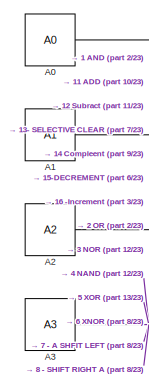
[diagram: root canvas - part 1/23, top left region]
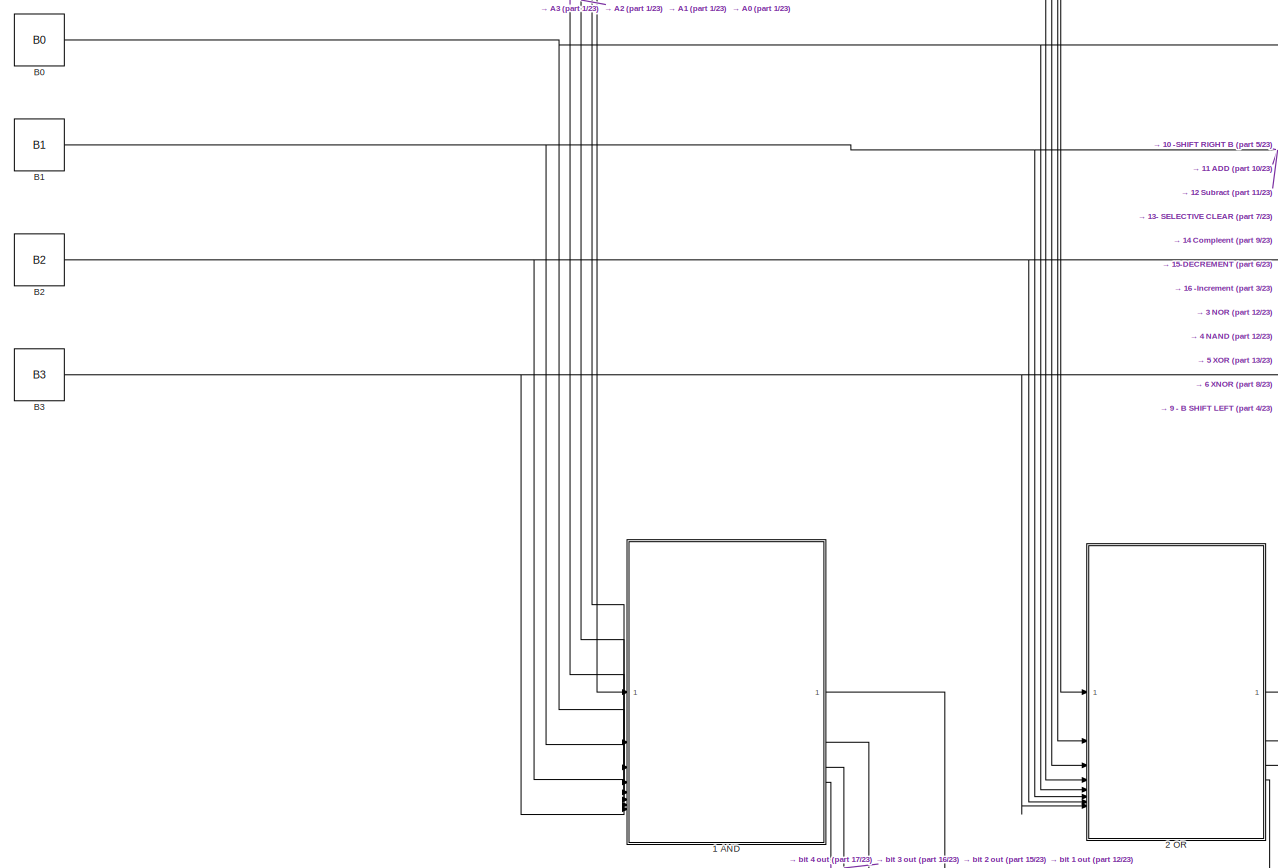
[diagram: root canvas - part 2/23, top left region]
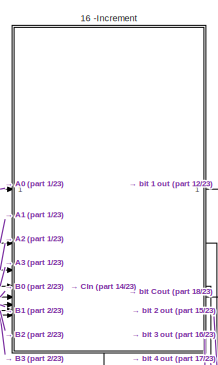
[diagram: root canvas - part 3/23, top right region]
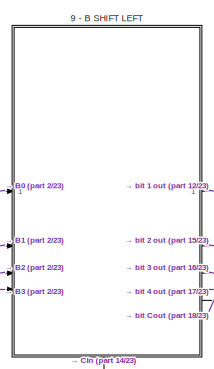
[diagram: root canvas - part 4/23, central region]
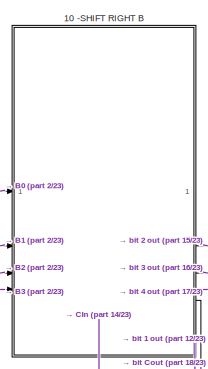
[diagram: root canvas - part 5/23, central region]
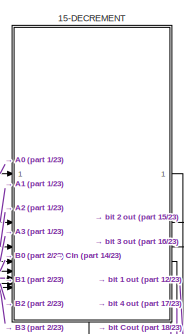
[diagram: root canvas - part 6/23, middle right region]
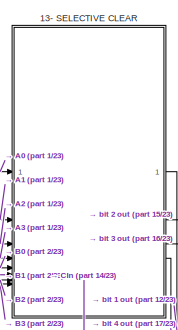
[diagram: root canvas - part 7/23, middle right region]
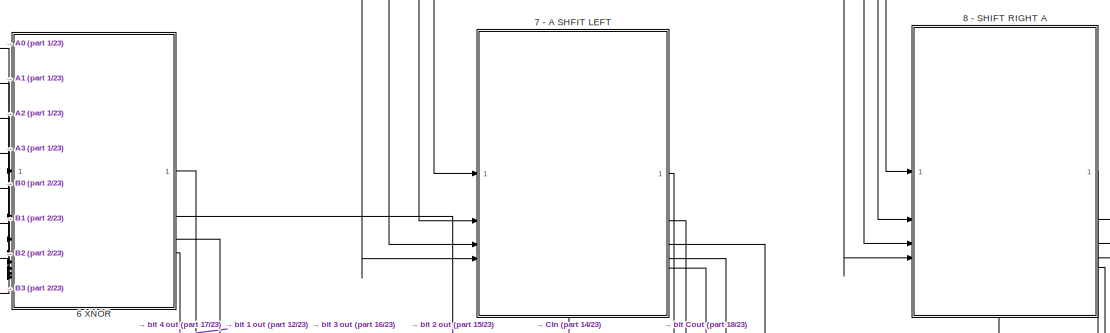
[diagram: root canvas - part 8/23, central region]
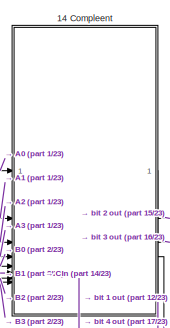
[diagram: root canvas - part 9/23, middle right region]
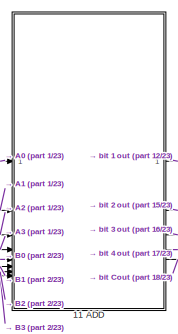
[diagram: root canvas - part 10/23, central region]
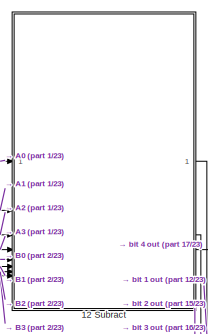
[diagram: root canvas - part 11/23, middle right region]
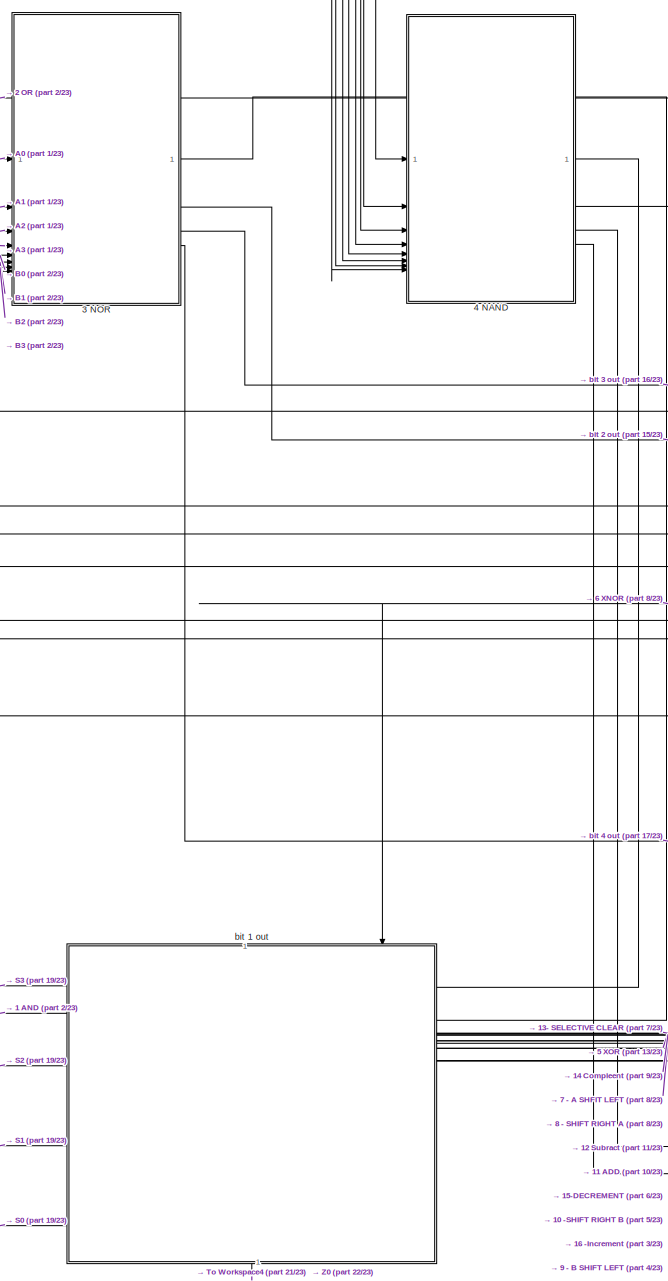
[diagram: root canvas - part 12/23, middle left region]
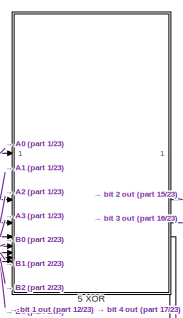
[diagram: root canvas - part 13/23, middle left region]
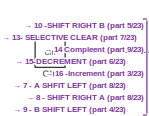
[diagram: root canvas - part 14/23, middle left region]
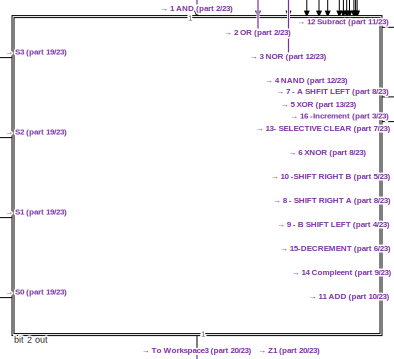
[diagram: root canvas - part 15/23, bottom center region]
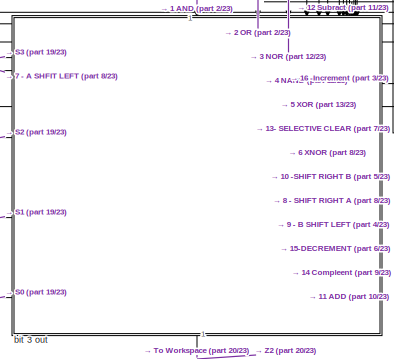
[diagram: root canvas - part 16/23, bottom center region]
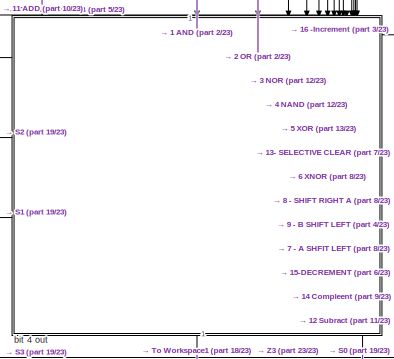
[diagram: root canvas - part 17/23, bottom right region]
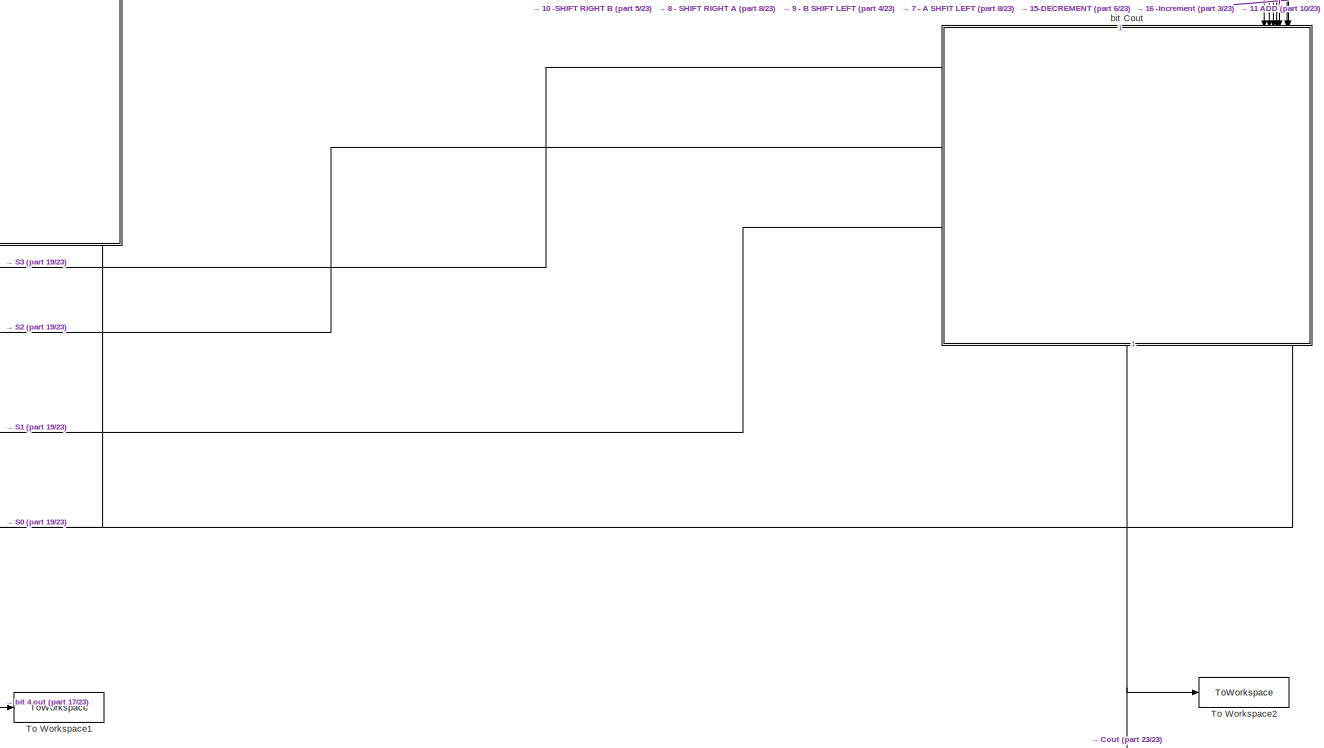
[diagram: root canvas - part 18/23, bottom right region]
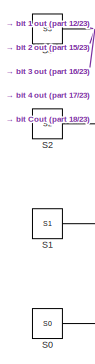
[diagram: root canvas - part 19/23, bottom left region]
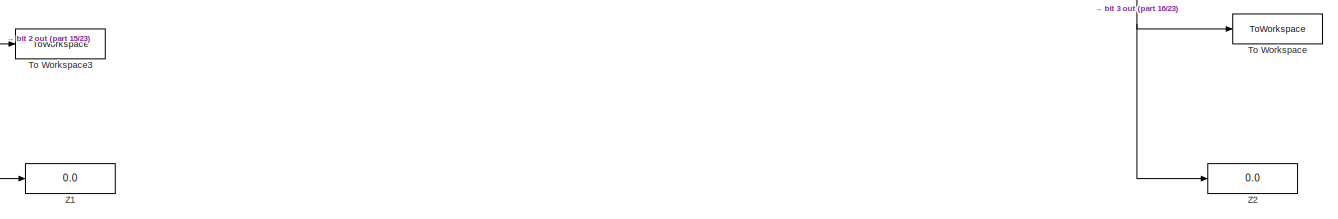
[diagram: root canvas - part 20/23, bottom center region]
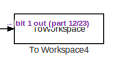
[diagram: root canvas - part 21/23, bottom left region]
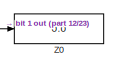
[diagram: root canvas - part 22/23, bottom left region]
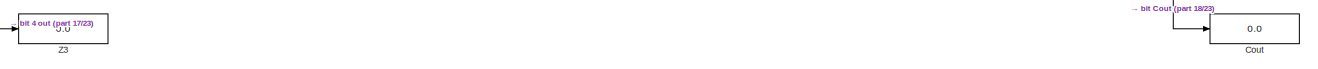
[diagram: root canvas - part 23/23, bottom right region]
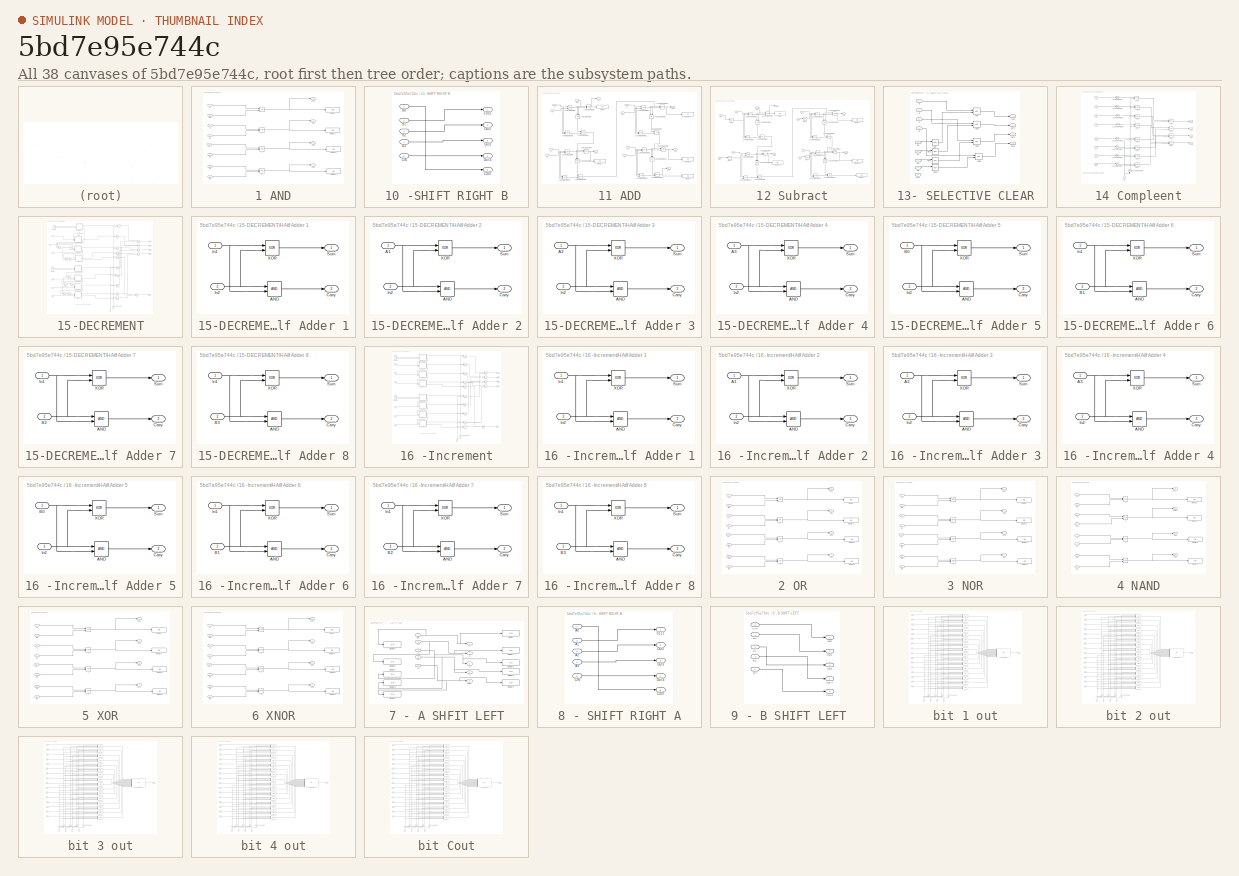
[diagram: thumbnail index - all 38 canvases of the model, root first then tree order]
MODEL slx_5bd7e95e744c
KIND model
CONFIG AbsTol = auto
CONFIG EnableMultiTasking = off
CONFIG FixedStep = auto
CONFIG MaxStep = auto
CONFIG MinStep = auto
CONFIG RelTol = 1e-3
CONFIG SampleTimeConstraint = Unconstrained
CONFIG SolverName = VariableStepAuto
CONFIG StartTime = 0.0
CONFIG StopTime = 1
BLOCK [SubSystem] 1 AND
  NameLocation = top
BLOCK [Logic] 1 AND/ 
  AllPortsSameDT = off
  OutDataTypeStr = boolean
BLOCK [Logic] 1 AND/ 1
  AllPortsSameDT = off
  OutDataTypeStr = boolean
BLOCK [Logic] 1 AND/ 2
  AllPortsSameDT = off
  OutDataTypeStr = boolean
BLOCK [Logic] 1 AND/ 3
  AllPortsSameDT = off
  OutDataTypeStr = boolean
BLOCK [Outport] 1 AND/0000
BLOCK [Inport] 1 AND/A0
BLOCK [Inport] 1 AND/A1
  Port = 2
BLOCK [Inport] 1 AND/A2
  Port = 3
BLOCK [Inport] 1 AND/A3
  Port = 4
BLOCK [Inport] 1 AND/B0
  Port = 5
BLOCK [Inport] 1 AND/B1
  Port = 6
BLOCK [Inport] 1 AND/B2
  Port = 7
BLOCK [Inport] 1 AND/B3
  Port = 8
BLOCK [Outport] 1 AND/Out2
  Port = 2
BLOCK [Outport] 1 AND/Out3
  Port = 3
BLOCK [Outport] 1 AND/Out4
  Port = 4
BLOCK [Display] 1 AND/display
  Decimation = 1
BLOCK [Display] 1 AND/display1
  Decimation = 1
BLOCK [Display] 1 AND/display2
  Decimation = 1
BLOCK [Display] 1 AND/display3
  Decimation = 1
BLOCK [SubSystem] 10 -SHIFT RIGHT B
  NameLocation = top
  PortSchema = {"entries":[{"content":{"sides":[{"content":{"connectorIds":["In1","In2","In3","In4"]},"type":"ConnectorPlacement.EquallySpacedRectSide","uuid":"67726d20-445a-49cb-8099-ac09b8ccc5e3"},{"content":{"connectorIds":["Out1","Out2","Out3","Out4","Out5"],"side":"RIGHT"},"type":"ConnectorPlacement.EquallySpacedRectSide","uuid":"ee54af08-fb8b-46dc-82ba-e86450b02724"},{"content":{"side":"TOP"},"type":"Conne...<+417ch>  <repeated x4 — deduplicated; at blocks: 10 -SHIFT RIGHT B, 7 - A SHFIT LEFT, 8 - SHIFT RIGHT A, 9 - B SHIFT LEFT>
BLOCK [Outport] 10 -SHIFT RIGHT B/1001
BLOCK [Inport] 10 -SHIFT RIGHT B/B0
BLOCK [Inport] 10 -SHIFT RIGHT B/B1
  Port = 2
BLOCK [Inport] 10 -SHIFT RIGHT B/B2
  Port = 3
BLOCK [Inport] 10 -SHIFT RIGHT B/B3
  Port = 4
BLOCK [Inport] 10 -SHIFT RIGHT B/CIN
  Port = 5
BLOCK [Outport] 10 -SHIFT RIGHT B/COUT
  Port = 5
BLOCK [Outport] 10 -SHIFT RIGHT B/Out 4
  Port = 4
BLOCK [Outport] 10 -SHIFT RIGHT B/Out2
  Port = 2
BLOCK [Outport] 10 -SHIFT RIGHT B/Out3
  Port = 3
BLOCK [SubSystem] 11 ADD
  NameLocation = top
BLOCK [Outport] 11 ADD/1010
BLOCK [Inport] 11 ADD/A0
BLOCK [Inport] 11 ADD/A1
  Port = 2
BLOCK [Inport] 11 ADD/A2
  Port = 3
BLOCK [Inport] 11 ADD/A3
  Port = 4
BLOCK [Inport] 11 ADD/B0
  Port = 5
BLOCK [Inport] 11 ADD/B1
  Port = 6
BLOCK [Inport] 11 ADD/B2
  Port = 7
BLOCK [Inport] 11 ADD/B3
  Port = 8
BLOCK [Constant] 11 ADD/Cin
  Value = 0
BLOCK [Logic] 11 ADD/Logical Operator1
  AllPortsSameDT = off
  IconShape = distinctive
  NameLocation = left
  OutDataTypeStr = boolean
BLOCK [Logic] 11 ADD/Logical Operator10
  AllPortsSameDT = off
  IconShape = distinctive
  OutDataTypeStr = boolean
BLOCK [Logic] 11 ADD/Logical Operator11
  AllPortsSameDT = off
  IconShape = distinctive
  NameLocation = left
  OutDataTypeStr = boolean
BLOCK [Logic] 11 ADD/Logical Operator12
  AllPortsSameDT = off
  IconShape = distinctive
  Operator = XOR
  OutDataTypeStr = boolean
BLOCK [Logic] 11 ADD/Logical Operator13
  AllPortsSameDT = off
  IconShape = distinctive
  Operator = XOR
  OutDataTypeStr = boolean
BLOCK [Logic] 11 ADD/Logical Operator14
  AllPortsSameDT = off
  IconShape = distinctive
  Operator = OR
  OutDataTypeStr = boolean
BLOCK [Logic] 11 ADD/Logical Operator15
  AllPortsSameDT = off
  IconShape = distinctive
  OutDataTypeStr = boolean
BLOCK [Logic] 11 ADD/Logical Operator16
  AllPortsSameDT = off
  IconShape = distinctive
  NameLocation = left
  OutDataTypeStr = boolean
BLOCK [Logic] 11 ADD/Logical Operator17
  AllPortsSameDT = off
  IconShape = distinctive
  Operator = XOR
  OutDataTypeStr = boolean
BLOCK [Logic] 11 ADD/Logical Operator18
  AllPortsSameDT = off
  IconShape = distinctive
  Operator = XOR
  OutDataTypeStr = boolean
BLOCK [Logic] 11 ADD/Logical Operator19
  AllPortsSameDT = off
  IconShape = distinctive
  Operator = OR
  OutDataTypeStr = boolean
BLOCK [Logic] 11 ADD/Logical Operator2
  AllPortsSameDT = off
  IconShape = distinctive
  Operator = XOR
  OutDataTypeStr = boolean
BLOCK [Logic] 11 ADD/Logical Operator20
  AllPortsSameDT = off
  IconShape = distinctive
  OutDataTypeStr = boolean
BLOCK [Logic] 11 ADD/Logical Operator3
  AllPortsSameDT = off
  IconShape = distinctive
  Operator = XOR
  OutDataTypeStr = boolean
BLOCK [Logic] 11 ADD/Logical Operator4
  AllPortsSameDT = off
  IconShape = distinctive
  Operator = OR
  OutDataTypeStr = boolean
BLOCK [Logic] 11 ADD/Logical Operator5
  AllPortsSameDT = off
  IconShape = distinctive
  OutDataTypeStr = boolean
BLOCK [Logic] 11 ADD/Logical Operator6
  AllPortsSameDT = off
  IconShape = distinctive
  NameLocation = left
  OutDataTypeStr = boolean
BLOCK [Logic] 11 ADD/Logical Operator7
  AllPortsSameDT = off
  IconShape = distinctive
  Operator = XOR
  OutDataTypeStr = boolean
BLOCK [Logic] 11 ADD/Logical Operator8
  AllPortsSameDT = off
  IconShape = distinctive
  Operator = XOR
  OutDataTypeStr = boolean
BLOCK [Logic] 11 ADD/Logical Operator9
  AllPortsSameDT = off
  IconShape = distinctive
  Operator = OR
  OutDataTypeStr = boolean
BLOCK [Outport] 11 ADD/Out2
  Port = 2
BLOCK [Outport] 11 ADD/Out3
  Port = 3
BLOCK [Outport] 11 ADD/Out4
  Port = 4
BLOCK [Outport] 11 ADD/Out5
  Port = 5
BLOCK [Display] 11 ADD/display
  Decimation = 1
BLOCK [Display] 11 ADD/display1
  Decimation = 1
BLOCK [Display] 11 ADD/display2
  Decimation = 1
BLOCK [Display] 11 ADD/display3
  Decimation = 1
BLOCK [Display] 11 ADD/display4
  Decimation = 1
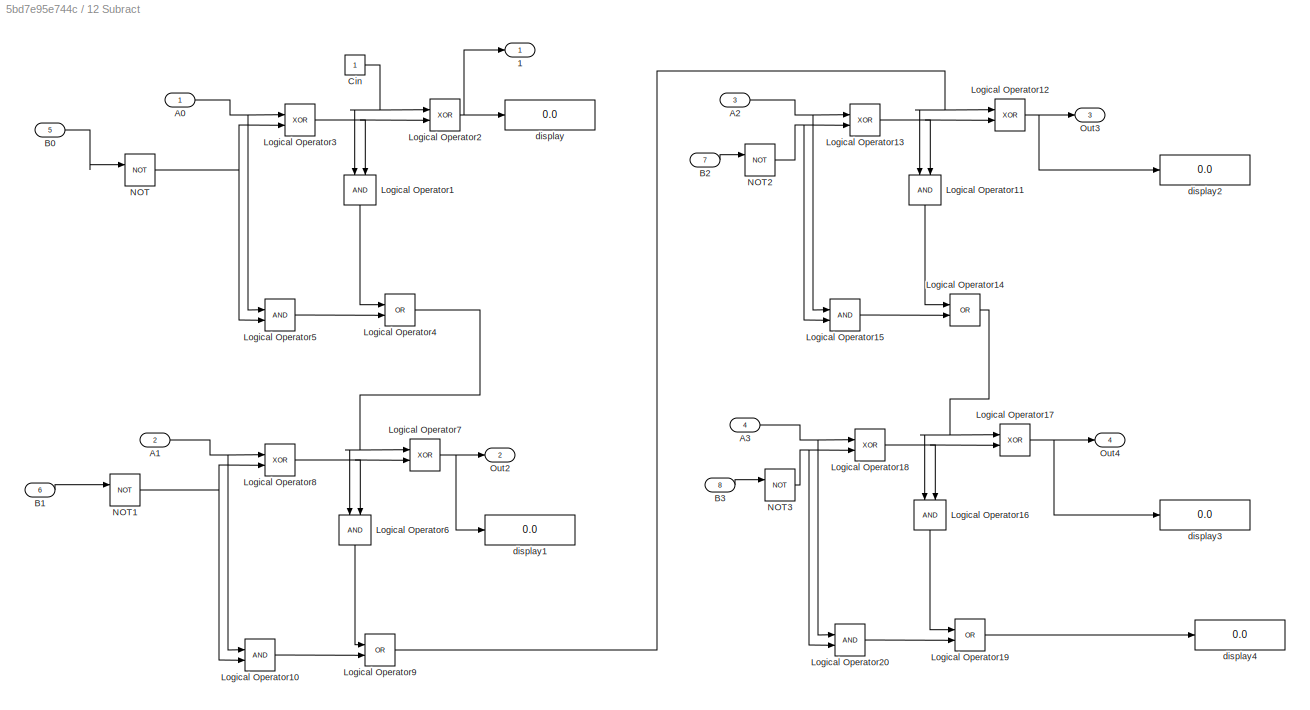
BLOCK [SubSystem] 12 Subract
  NameLocation = top
BLOCK [Outport] 12 Subract/1
BLOCK [Inport] 12 Subract/A0
BLOCK [Inport] 12 Subract/A1
  Port = 2
BLOCK [Inport] 12 Subract/A2
  Port = 3
BLOCK [Inport] 12 Subract/A3
  Port = 4
BLOCK [Inport] 12 Subract/B0
  Port = 5
BLOCK [Inport] 12 Subract/B1
  Port = 6
BLOCK [Inport] 12 Subract/B2
  Port = 7
BLOCK [Inport] 12 Subract/B3
  Port = 8
BLOCK [Constant] 12 Subract/Cin
BLOCK [Logic] 12 Subract/Logical Operator1
  AllPortsSameDT = off
  IconShape = distinctive
  NameLocation = left
  OutDataTypeStr = boolean
BLOCK [Logic] 12 Subract/Logical Operator10
  AllPortsSameDT = off
  IconShape = distinctive
  OutDataTypeStr = boolean
BLOCK [Logic] 12 Subract/Logical Operator11
  AllPortsSameDT = off
  IconShape = distinctive
  NameLocation = left
  OutDataTypeStr = boolean
BLOCK [Logic] 12 Subract/Logical Operator12
  AllPortsSameDT = off
  IconShape = distinctive
  Operator = XOR
  OutDataTypeStr = boolean
BLOCK [Logic] 12 Subract/Logical Operator13
  AllPortsSameDT = off
  IconShape = distinctive
  Operator = XOR
  OutDataTypeStr = boolean
BLOCK [Logic] 12 Subract/Logical Operator14
  AllPortsSameDT = off
  IconShape = distinctive
  Operator = OR
  OutDataTypeStr = boolean
BLOCK [Logic] 12 Subract/Logical Operator15
  AllPortsSameDT = off
  IconShape = distinctive
  OutDataTypeStr = boolean
BLOCK [Logic] 12 Subract/Logical Operator16
  AllPortsSameDT = off
  IconShape = distinctive
  NameLocation = left
  OutDataTypeStr = boolean
BLOCK [Logic] 12 Subract/Logical Operator17
  AllPortsSameDT = off
  IconShape = distinctive
  Operator = XOR
  OutDataTypeStr = boolean
BLOCK [Logic] 12 Subract/Logical Operator18
  AllPortsSameDT = off
  IconShape = distinctive
  Operator = XOR
  OutDataTypeStr = boolean
BLOCK [Logic] 12 Subract/Logical Operator19
  AllPortsSameDT = off
  IconShape = distinctive
  Operator = OR
  OutDataTypeStr = boolean
BLOCK [Logic] 12 Subract/Logical Operator2
  AllPortsSameDT = off
  IconShape = distinctive
  Operator = XOR
  OutDataTypeStr = boolean
BLOCK [Logic] 12 Subract/Logical Operator20
  AllPortsSameDT = off
  IconShape = distinctive
  OutDataTypeStr = boolean
BLOCK [Logic] 12 Subract/Logical Operator3
  AllPortsSameDT = off
  IconShape = distinctive
  Operator = XOR
  OutDataTypeStr = boolean
BLOCK [Logic] 12 Subract/Logical Operator4
  AllPortsSameDT = off
  IconShape = distinctive
  Operator = OR
  OutDataTypeStr = boolean
BLOCK [Logic] 12 Subract/Logical Operator5
  AllPortsSameDT = off
  IconShape = distinctive
  OutDataTypeStr = boolean
BLOCK [Logic] 12 Subract/Logical Operator6
  AllPortsSameDT = off
  IconShape = distinctive
  NameLocation = left
  OutDataTypeStr = boolean
BLOCK [Logic] 12 Subract/Logical Operator7
  AllPortsSameDT = off
  IconShape = distinctive
  Operator = XOR
  OutDataTypeStr = boolean
BLOCK [Logic] 12 Subract/Logical Operator8
  AllPortsSameDT = off
  IconShape = distinctive
  Operator = XOR
  OutDataTypeStr = boolean
BLOCK [Logic] 12 Subract/Logical Operator9
  AllPortsSameDT = off
  IconShape = distinctive
  Operator = OR
  OutDataTypeStr = boolean
BLOCK [Logic] 12 Subract/NOT
  AllPortsSameDT = off
  IconShape = distinctive
  Operator = NOT
  OutDataTypeStr = boolean
BLOCK [Logic] 12 Subract/NOT1
  AllPortsSameDT = off
  IconShape = distinctive
  Operator = NOT
  OutDataTypeStr = boolean
BLOCK [Logic] 12 Subract/NOT2
  AllPortsSameDT = off
  IconShape = distinctive
  Operator = NOT
  OutDataTypeStr = boolean
BLOCK [Logic] 12 Subract/NOT3
  AllPortsSameDT = off
  IconShape = distinctive
  Operator = NOT
  OutDataTypeStr = boolean
BLOCK [Outport] 12 Subract/Out2
  Port = 2
BLOCK [Outport] 12 Subract/Out3
  Port = 3
BLOCK [Outport] 12 Subract/Out4
  Port = 4
BLOCK [Display] 12 Subract/display
  Decimation = 1
BLOCK [Display] 12 Subract/display1
  Decimation = 1
BLOCK [Display] 12 Subract/display2
  Decimation = 1
BLOCK [Display] 12 Subract/display3
  Decimation = 1
BLOCK [Display] 12 Subract/display4
  Decimation = 1
BLOCK [SubSystem] 13- SELECTIVE CLEAR
  NameLocation = top
  PortSchema = {"entries":[{"content":{"sides":[{"content":{"connectorIds":["In1","In2","In3","In4","In5","In6","In7","In8"]},"type":"ConnectorPlacement.EquallySpacedRectSide","uuid":"aab1b221-1cb0-4ca9-8866-8bcfb9a4275b"},{"content":{"connectorIds":["Out1","Out2","Out3","Out4"],"side":"RIGHT"},"type":"ConnectorPlacement.EquallySpacedRectSide","uuid":"6c2b9ce8-0a07-48e2-b787-5726e3fcf444"},{"content":{"side":"TO...<+434ch>
BLOCK [Outport] 13- SELECTIVE CLEAR/1100
BLOCK [Inport] 13- SELECTIVE CLEAR/A0
BLOCK [Inport] 13- SELECTIVE CLEAR/A1
  Port = 2
BLOCK [Inport] 13- SELECTIVE CLEAR/A2
  Port = 3
BLOCK [Inport] 13- SELECTIVE CLEAR/A3
  Port = 4
BLOCK [Logic] 13- SELECTIVE CLEAR/AND
  AllPortsSameDT = off
  IconShape = distinctive
  OutDataTypeStr = boolean
BLOCK [Logic] 13- SELECTIVE CLEAR/AND1
  AllPortsSameDT = off
  IconShape = distinctive
  OutDataTypeStr = boolean
BLOCK [Logic] 13- SELECTIVE CLEAR/AND2
  AllPortsSameDT = off
  IconShape = distinctive
  OutDataTypeStr = boolean
BLOCK [Logic] 13- SELECTIVE CLEAR/AND3
  AllPortsSameDT = off
  IconShape = distinctive
  OutDataTypeStr = boolean
BLOCK [Inport] 13- SELECTIVE CLEAR/B0
  Port = 5
BLOCK [Inport] 13- SELECTIVE CLEAR/B1
  Port = 6
BLOCK [Inport] 13- SELECTIVE CLEAR/B2
  Port = 7
BLOCK [Inport] 13- SELECTIVE CLEAR/B3
  Port = 8
BLOCK [Inport] 13- SELECTIVE CLEAR/CIN
  Port = 9
BLOCK [Logic] 13- SELECTIVE CLEAR/NOT
  AllPortsSameDT = off
  IconShape = distinctive
  Operator = NOT
  OutDataTypeStr = boolean
BLOCK [Logic] 13- SELECTIVE CLEAR/NOT1
  AllPortsSameDT = off
  IconShape = distinctive
  Operator = NOT
  OutDataTypeStr = boolean
BLOCK [Logic] 13- SELECTIVE CLEAR/NOT2
  AllPortsSameDT = off
  IconShape = distinctive
  Operator = NOT
  OutDataTypeStr = boolean
BLOCK [Logic] 13- SELECTIVE CLEAR/NOT3
  AllPortsSameDT = off
  IconShape = distinctive
  Operator = NOT
  OutDataTypeStr = boolean
BLOCK [Outport] 13- SELECTIVE CLEAR/Out2
  Port = 2
BLOCK [Outport] 13- SELECTIVE CLEAR/Out3
  Port = 3
BLOCK [Outport] 13- SELECTIVE CLEAR/Out4
  Port = 4
BLOCK [SubSystem] 14 Compleent
  NameLocation = top
  PortSchema = {"entries":[{"content":{"sides":[{"content":{"connectorIds":["In1","In2","In3","In4","In5","In6","In7","In8"]},"type":"ConnectorPlacement.EquallySpacedRectSide","uuid":"aab1b221-1cb0-4ca9-8866-8bcfb9a4275b"},{"content":{"connectorIds":["Out1","Out2","Out3","Out4"],"side":"RIGHT"},"type":"ConnectorPlacement.EquallySpacedRectSide","uuid":"6c2b9ce8-0a07-48e2-b787-5726e3fcf444"},{"content":{"side":"TO...<+434ch>
BLOCK [Outport] 14 Compleent/1100
  Port = 4
BLOCK [Outport] 14 Compleent/1101
BLOCK [Inport] 14 Compleent/A0
BLOCK [Inport] 14 Compleent/A1
  Port = 2
BLOCK [Inport] 14 Compleent/A2
  Port = 3
BLOCK [Inport] 14 Compleent/A3
  Port = 4
BLOCK [Logic] 14 Compleent/AND
  AllPortsSameDT = off
  IconShape = distinctive
  OutDataTypeStr = boolean
BLOCK [Logic] 14 Compleent/AND1
  AllPortsSameDT = off
  IconShape = distinctive
  OutDataTypeStr = boolean
BLOCK [Logic] 14 Compleent/AND2
  AllPortsSameDT = off
  IconShape = distinctive
  OutDataTypeStr = boolean
BLOCK [Logic] 14 Compleent/AND3
  AllPortsSameDT = off
  IconShape = distinctive
  OutDataTypeStr = boolean
BLOCK [Logic] 14 Compleent/AND4
  AllPortsSameDT = off
  IconShape = distinctive
  OutDataTypeStr = boolean
BLOCK [Logic] 14 Compleent/AND5
  AllPortsSameDT = off
  IconShape = distinctive
  OutDataTypeStr = boolean
BLOCK [Logic] 14 Compleent/AND6
  AllPortsSameDT = off
  IconShape = distinctive
  OutDataTypeStr = boolean
BLOCK [Logic] 14 Compleent/AND7
  AllPortsSameDT = off
  IconShape = distinctive
  OutDataTypeStr = boolean
BLOCK [Inport] 14 Compleent/B0
  Port = 5
BLOCK [Inport] 14 Compleent/B1
  Port = 6
BLOCK [Inport] 14 Compleent/B2
  Port = 7
BLOCK [Inport] 14 Compleent/B3
  Port = 8
BLOCK [Inport] 14 Compleent/Cin
  NameLocation = right
  Port = 9
BLOCK [Logic] 14 Compleent/Logical Operator
  AllPortsSameDT = off
  IconShape = distinctive
  Operator = NOT
  OutDataTypeStr = boolean
BLOCK [Logic] 14 Compleent/Logical Operator1
  AllPortsSameDT = off
  IconShape = distinctive
  Operator = NOT
  OutDataTypeStr = boolean
BLOCK [Logic] 14 Compleent/Logical Operator2
  AllPortsSameDT = off
  IconShape = distinctive
  Operator = NOT
  OutDataTypeStr = boolean
BLOCK [Logic] 14 Compleent/Logical Operator3
  AllPortsSameDT = off
  IconShape = distinctive
  Operator = NOT
  OutDataTypeStr = boolean
BLOCK [Logic] 14 Compleent/Logical Operator4
  AllPortsSameDT = off
  IconShape = distinctive
  Operator = NOT
  OutDataTypeStr = boolean
BLOCK [Logic] 14 Compleent/Logical Operator5
  AllPortsSameDT = off
  IconShape = distinctive
  Operator = NOT
  OutDataTypeStr = boolean
BLOCK [Logic] 14 Compleent/Logical Operator6
  AllPortsSameDT = off
  IconShape = distinctive
  Operator = NOT
  OutDataTypeStr = boolean
BLOCK [Logic] 14 Compleent/Logical Operator7
  AllPortsSameDT = off
  IconShape = distinctive
  Operator = NOT
  OutDataTypeStr = boolean
BLOCK [Logic] 14 Compleent/Logical Operator8
  AllPortsSameDT = off
  IconShape = distinctive
  NameLocation = right
  Operator = NOT
  OutDataTypeStr = boolean
BLOCK [Logic] 14 Compleent/OR
  AllPortsSameDT = off
  IconShape = distinctive
  Operator = OR
  OutDataTypeStr = boolean
BLOCK [Logic] 14 Compleent/OR1
  AllPortsSameDT = off
  IconShape = distinctive
  Operator = OR
  OutDataTypeStr = boolean
BLOCK [Logic] 14 Compleent/OR2
  AllPortsSameDT = off
  IconShape = distinctive
  Operator = OR
  OutDataTypeStr = boolean
BLOCK [Logic] 14 Compleent/OR3
  AllPortsSameDT = off
  IconShape = distinctive
  Operator = OR
  OutDataTypeStr = boolean
BLOCK [Outport] 14 Compleent/Out2
  Port = 2
BLOCK [Outport] 14 Compleent/Out3
  Port = 3
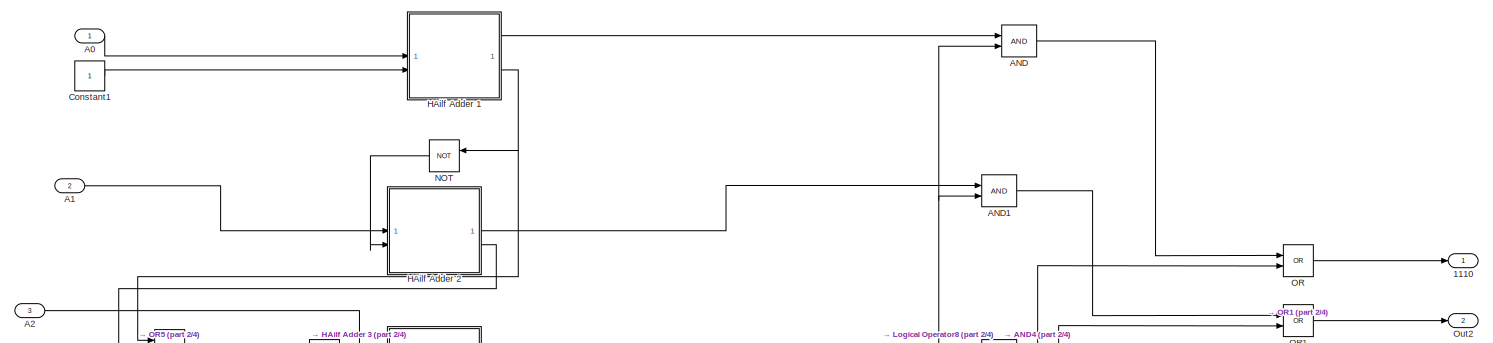
[diagram: 15-DECREMENT - part 1/4, full width, top band]
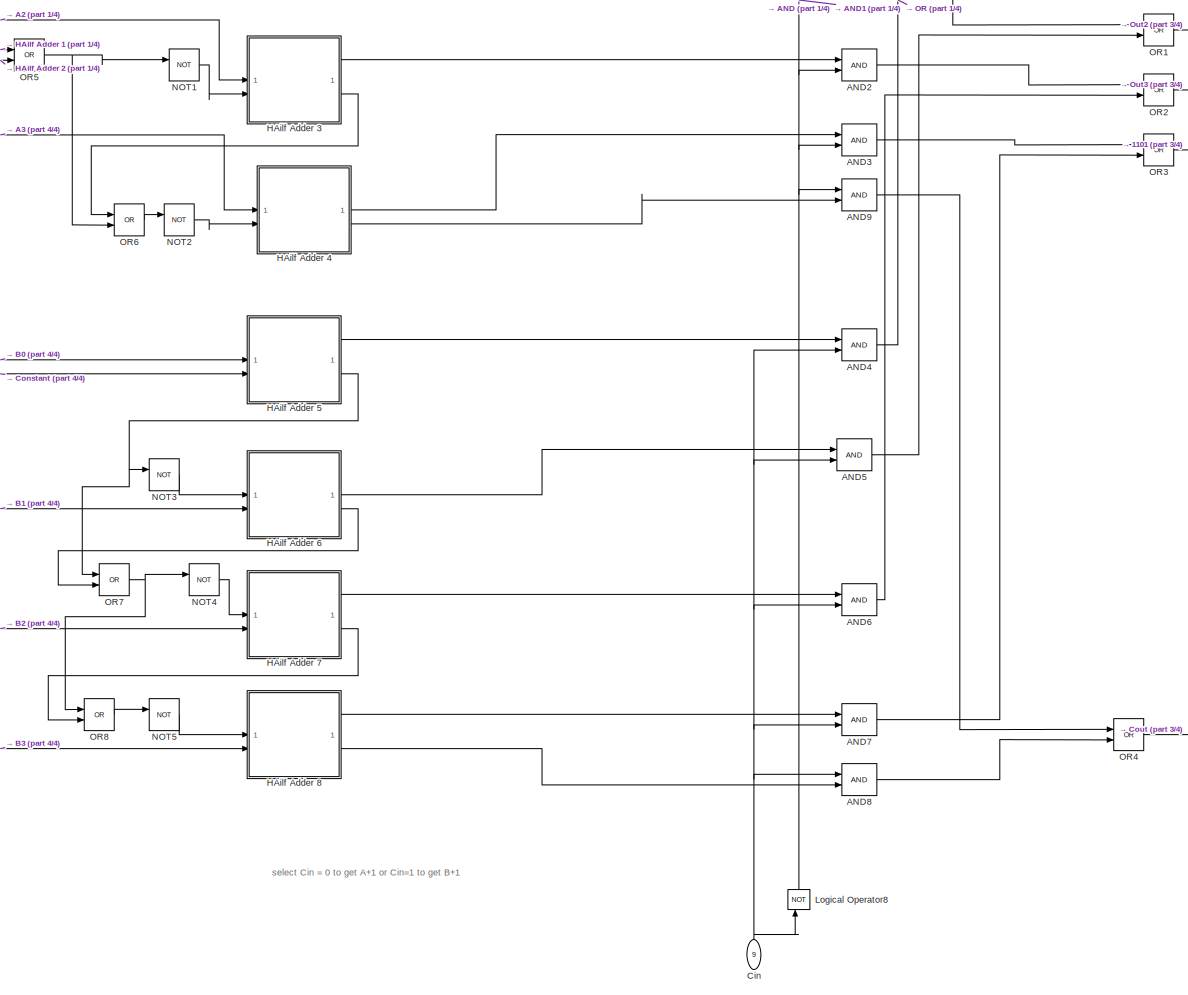
[diagram: 15-DECREMENT - part 2/4, most of the canvas]
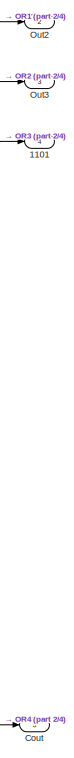
[diagram: 15-DECREMENT - part 3/4, middle right region]
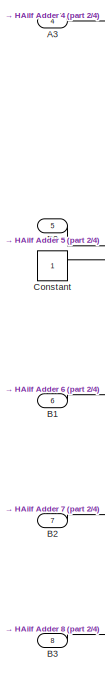
[diagram: 15-DECREMENT - part 4/4, middle left region]
BLOCK [SubSystem] 15-DECREMENT
  NameLocation = top
  PortSchema = {"entries":[{"content":{"sides":[{"content":{"connectorIds":["In1","In2","In3","In4","In5","In6","In7","In8"]},"type":"ConnectorPlacement.EquallySpacedRectSide","uuid":"869fb0d4-d1f3-44bd-a919-19db4d026c4c"},{"content":{"connectorIds":["Out1","Out2","Out3","Out4","Out5"],"side":"RIGHT"},"type":"ConnectorPlacement.EquallySpacedRectSide","uuid":"d1e23600-62c0-4a53-bf3f-03977fd433f6"},{"content":{"si...<+441ch>
BLOCK [Outport] 15-DECREMENT/1101
  Port = 4
BLOCK [Outport] 15-DECREMENT/1110
BLOCK [Inport] 15-DECREMENT/A0
BLOCK [Inport] 15-DECREMENT/A1
  Port = 2
BLOCK [Inport] 15-DECREMENT/A2
  Port = 3
BLOCK [Inport] 15-DECREMENT/A3
  Port = 4
BLOCK [Logic] 15-DECREMENT/AND
  AllPortsSameDT = off
  IconShape = distinctive
  OutDataTypeStr = boolean
BLOCK [Logic] 15-DECREMENT/AND1
  AllPortsSameDT = off
  IconShape = distinctive
  OutDataTypeStr = boolean
BLOCK [Logic] 15-DECREMENT/AND2
  AllPortsSameDT = off
  IconShape = distinctive
  OutDataTypeStr = boolean
BLOCK [Logic] 15-DECREMENT/AND3
  AllPortsSameDT = off
  IconShape = distinctive
  OutDataTypeStr = boolean
BLOCK [Logic] 15-DECREMENT/AND4
  AllPortsSameDT = off
  IconShape = distinctive
  OutDataTypeStr = boolean
BLOCK [Logic] 15-DECREMENT/AND5
  AllPortsSameDT = off
  IconShape = distinctive
  OutDataTypeStr = boolean
BLOCK [Logic] 15-DECREMENT/AND6
  AllPortsSameDT = off
  IconShape = distinctive
  OutDataTypeStr = boolean
BLOCK [Logic] 15-DECREMENT/AND7
  AllPortsSameDT = off
  IconShape = distinctive
  OutDataTypeStr = boolean
BLOCK [Logic] 15-DECREMENT/AND8
  AllPortsSameDT = off
  IconShape = distinctive
  OutDataTypeStr = boolean
BLOCK [Logic] 15-DECREMENT/AND9
  AllPortsSameDT = off
  IconShape = distinctive
  OutDataTypeStr = boolean
BLOCK [Inport] 15-DECREMENT/B0
  Port = 5
BLOCK [Inport] 15-DECREMENT/B1
  Port = 6
BLOCK [Inport] 15-DECREMENT/B2
  Port = 7
BLOCK [Inport] 15-DECREMENT/B3
  Port = 8
BLOCK [Inport] 15-DECREMENT/Cin
  NameLocation = right
  Port = 9
BLOCK [Constant] 15-DECREMENT/Constant
BLOCK [Constant] 15-DECREMENT/Constant1
BLOCK [Outport] 15-DECREMENT/Cout
  Port = 5
BLOCK [SubSystem] 15-DECREMENT/HAilf Adder 1
BLOCK [Logic] 15-DECREMENT/HAilf Adder 1/AND
  AllPortsSameDT = off
  IconShape = distinctive
  OutDataTypeStr = boolean
BLOCK [Outport] 15-DECREMENT/HAilf Adder 1/Carry
  Port = 2
BLOCK [Inport] 15-DECREMENT/HAilf Adder 1/In1
BLOCK [Inport] 15-DECREMENT/HAilf Adder 1/In2
  Port = 2
BLOCK [Outport] 15-DECREMENT/HAilf Adder 1/Sum
BLOCK [Logic] 15-DECREMENT/HAilf Adder 1/XOR
  AllPortsSameDT = off
  IconShape = distinctive
  Operator = XOR
  OutDataTypeStr = boolean
BLOCK [SubSystem] 15-DECREMENT/HAilf Adder 2
BLOCK [Inport] 15-DECREMENT/HAilf Adder 2/A1
BLOCK [Logic] 15-DECREMENT/HAilf Adder 2/AND
  AllPortsSameDT = off
  IconShape = distinctive
  OutDataTypeStr = boolean
BLOCK [Outport] 15-DECREMENT/HAilf Adder 2/Carry
  Port = 2
BLOCK [Inport] 15-DECREMENT/HAilf Adder 2/In2
  Port = 2
BLOCK [Outport] 15-DECREMENT/HAilf Adder 2/Sum
BLOCK [Logic] 15-DECREMENT/HAilf Adder 2/XOR
  AllPortsSameDT = off
  IconShape = distinctive
  Operator = XOR
  OutDataTypeStr = boolean
BLOCK [SubSystem] 15-DECREMENT/HAilf Adder 3
BLOCK [Inport] 15-DECREMENT/HAilf Adder 3/A2
BLOCK [Logic] 15-DECREMENT/HAilf Adder 3/AND
  AllPortsSameDT = off
  IconShape = distinctive
  OutDataTypeStr = boolean
BLOCK [Outport] 15-DECREMENT/HAilf Adder 3/Carry
  Port = 2
BLOCK [Inport] 15-DECREMENT/HAilf Adder 3/In2
  Port = 2
BLOCK [Outport] 15-DECREMENT/HAilf Adder 3/Sum
BLOCK [Logic] 15-DECREMENT/HAilf Adder 3/XOR
  AllPortsSameDT = off
  IconShape = distinctive
  Operator = XOR
  OutDataTypeStr = boolean
BLOCK [SubSystem] 15-DECREMENT/HAilf Adder 4
BLOCK [Inport] 15-DECREMENT/HAilf Adder 4/A3
BLOCK [Logic] 15-DECREMENT/HAilf Adder 4/AND
  AllPortsSameDT = off
  IconShape = distinctive
  OutDataTypeStr = boolean
BLOCK [Outport] 15-DECREMENT/HAilf Adder 4/Carry
  Port = 2
BLOCK [Inport] 15-DECREMENT/HAilf Adder 4/In2
  Port = 2
BLOCK [Outport] 15-DECREMENT/HAilf Adder 4/Sum
BLOCK [Logic] 15-DECREMENT/HAilf Adder 4/XOR
  AllPortsSameDT = off
  IconShape = distinctive
  Operator = XOR
  OutDataTypeStr = boolean
BLOCK [SubSystem] 15-DECREMENT/HAilf Adder 5
BLOCK [Logic] 15-DECREMENT/HAilf Adder 5/AND
  AllPortsSameDT = off
  IconShape = distinctive
  OutDataTypeStr = boolean
BLOCK [Inport] 15-DECREMENT/HAilf Adder 5/B0
BLOCK [Outport] 15-DECREMENT/HAilf Adder 5/Carry
  Port = 2
BLOCK [Inport] 15-DECREMENT/HAilf Adder 5/In2
  Port = 2
BLOCK [Outport] 15-DECREMENT/HAilf Adder 5/Sum
BLOCK [Logic] 15-DECREMENT/HAilf Adder 5/XOR
  AllPortsSameDT = off
  IconShape = distinctive
  Operator = XOR
  OutDataTypeStr = boolean
BLOCK [SubSystem] 15-DECREMENT/HAilf Adder 6
BLOCK [Logic] 15-DECREMENT/HAilf Adder 6/AND
  AllPortsSameDT = off
  IconShape = distinctive
  OutDataTypeStr = boolean
BLOCK [Inport] 15-DECREMENT/HAilf Adder 6/B1
  Port = 2
BLOCK [Outport] 15-DECREMENT/HAilf Adder 6/Carry
  Port = 2
BLOCK [Inport] 15-DECREMENT/HAilf Adder 6/In1
BLOCK [Outport] 15-DECREMENT/HAilf Adder 6/Sum
BLOCK [Logic] 15-DECREMENT/HAilf Adder 6/XOR
  AllPortsSameDT = off
  IconShape = distinctive
  Operator = XOR
  OutDataTypeStr = boolean
BLOCK [SubSystem] 15-DECREMENT/HAilf Adder 7
BLOCK [Logic] 15-DECREMENT/HAilf Adder 7/AND
  AllPortsSameDT = off
  IconShape = distinctive
  OutDataTypeStr = boolean
BLOCK [Inport] 15-DECREMENT/HAilf Adder 7/B2
  Port = 2
BLOCK [Outport] 15-DECREMENT/HAilf Adder 7/Carry
  Port = 2
BLOCK [Inport] 15-DECREMENT/HAilf Adder 7/In1
BLOCK [Outport] 15-DECREMENT/HAilf Adder 7/Sum
BLOCK [Logic] 15-DECREMENT/HAilf Adder 7/XOR
  AllPortsSameDT = off
  IconShape = distinctive
  Operator = XOR
  OutDataTypeStr = boolean
BLOCK [SubSystem] 15-DECREMENT/HAilf Adder 8
BLOCK [Logic] 15-DECREMENT/HAilf Adder 8/AND
  AllPortsSameDT = off
  IconShape = distinctive
  OutDataTypeStr = boolean
BLOCK [Inport] 15-DECREMENT/HAilf Adder 8/B3
  Port = 2
BLOCK [Outport] 15-DECREMENT/HAilf Adder 8/Carry
  Port = 2
BLOCK [Inport] 15-DECREMENT/HAilf Adder 8/In1
BLOCK [Outport] 15-DECREMENT/HAilf Adder 8/Sum
BLOCK [Logic] 15-DECREMENT/HAilf Adder 8/XOR
  AllPortsSameDT = off
  IconShape = distinctive
  Operator = XOR
  OutDataTypeStr = boolean
BLOCK [Logic] 15-DECREMENT/Logical Operator8
  AllPortsSameDT = off
  IconShape = distinctive
  NameLocation = right
  Operator = NOT
  OutDataTypeStr = boolean
BLOCK [Logic] 15-DECREMENT/NOT
  AllPortsSameDT = off
  IconShape = distinctive
  NameLocation = top
  Operator = NOT
  OutDataTypeStr = boolean
BLOCK [Logic] 15-DECREMENT/NOT1
  AllPortsSameDT = off
  IconShape = distinctive
  Operator = NOT
  OutDataTypeStr = boolean
BLOCK [Logic] 15-DECREMENT/NOT2
  AllPortsSameDT = off
  IconShape = distinctive
  Operator = NOT
  OutDataTypeStr = boolean
BLOCK [Logic] 15-DECREMENT/NOT3
  AllPortsSameDT = off
  IconShape = distinctive
  Operator = NOT
  OutDataTypeStr = boolean
BLOCK [Logic] 15-DECREMENT/NOT4
  AllPortsSameDT = off
  IconShape = distinctive
  Operator = NOT
  OutDataTypeStr = boolean
BLOCK [Logic] 15-DECREMENT/NOT5
  AllPortsSameDT = off
  IconShape = distinctive
  Operator = NOT
  OutDataTypeStr = boolean
BLOCK [Logic] 15-DECREMENT/OR
  AllPortsSameDT = off
  IconShape = distinctive
  Operator = OR
  OutDataTypeStr = boolean
BLOCK [Logic] 15-DECREMENT/OR1
  AllPortsSameDT = off
  IconShape = distinctive
  Operator = OR
  OutDataTypeStr = boolean
BLOCK [Logic] 15-DECREMENT/OR2
  AllPortsSameDT = off
  IconShape = distinctive
  Operator = OR
  OutDataTypeStr = boolean
BLOCK [Logic] 15-DECREMENT/OR3
  AllPortsSameDT = off
  IconShape = distinctive
  Operator = OR
  OutDataTypeStr = boolean
BLOCK [Logic] 15-DECREMENT/OR4
  AllPortsSameDT = off
  IconShape = distinctive
  Operator = OR
  OutDataTypeStr = boolean
BLOCK [Logic] 15-DECREMENT/OR5
  AllPortsSameDT = off
  IconShape = distinctive
  Operator = OR
  OutDataTypeStr = boolean
BLOCK [Logic] 15-DECREMENT/OR6
  AllPortsSameDT = off
  IconShape = distinctive
  Operator = OR
  OutDataTypeStr = boolean
BLOCK [Logic] 15-DECREMENT/OR7
  AllPortsSameDT = off
  IconShape = distinctive
  Operator = OR
  OutDataTypeStr = boolean
BLOCK [Logic] 15-DECREMENT/OR8
  AllPortsSameDT = off
  IconShape = distinctive
  Operator = OR
  OutDataTypeStr = boolean
BLOCK [Outport] 15-DECREMENT/Out2
  Port = 2
BLOCK [Outport] 15-DECREMENT/Out3
  Port = 3
BLOCK [SubSystem] 16 -Increment
  NameLocation = top
  PortSchema = {"entries":[{"content":{"sides":[{"content":{"connectorIds":["In1","In2","In3","In4","In5","In6","In7","In8"]},"type":"ConnectorPlacement.EquallySpacedRectSide","uuid":"3ea3efc1-2c41-45a7-8c9d-434968181f92"},{"content":{"connectorIds":["Out1","Out2","Out3","Out4","Out5"],"side":"RIGHT"},"type":"ConnectorPlacement.EquallySpacedRectSide","uuid":"65b61c40-0cda-4050-95e7-78f124d34506"},{"content":{"si...<+441ch>
BLOCK [Outport] 16 -Increment/1111
BLOCK [Inport] 16 -Increment/A0
BLOCK [Inport] 16 -Increment/A1
  Port = 2
BLOCK [Inport] 16 -Increment/A2
  Port = 3
BLOCK [Inport] 16 -Increment/A3
  Port = 4
BLOCK [Logic] 16 -Increment/AND
  AllPortsSameDT = off
  IconShape = distinctive
  OutDataTypeStr = boolean
BLOCK [Logic] 16 -Increment/AND1
  AllPortsSameDT = off
  IconShape = distinctive
  OutDataTypeStr = boolean
BLOCK [Logic] 16 -Increment/AND2
  AllPortsSameDT = off
  IconShape = distinctive
  OutDataTypeStr = boolean
BLOCK [Logic] 16 -Increment/AND3
  AllPortsSameDT = off
  IconShape = distinctive
  OutDataTypeStr = boolean
BLOCK [Logic] 16 -Increment/AND4
  AllPortsSameDT = off
  IconShape = distinctive
  OutDataTypeStr = boolean
BLOCK [Logic] 16 -Increment/AND5
  AllPortsSameDT = off
  IconShape = distinctive
  OutDataTypeStr = boolean
BLOCK [Logic] 16 -Increment/AND6
  AllPortsSameDT = off
  IconShape = distinctive
  OutDataTypeStr = boolean
BLOCK [Logic] 16 -Increment/AND7
  AllPortsSameDT = off
  IconShape = distinctive
  OutDataTypeStr = boolean
BLOCK [Logic] 16 -Increment/AND8
  AllPortsSameDT = off
  IconShape = distinctive
  OutDataTypeStr = boolean
BLOCK [Logic] 16 -Increment/AND9
  AllPortsSameDT = off
  IconShape = distinctive
  OutDataTypeStr = boolean
BLOCK [Inport] 16 -Increment/B0
  Port = 5
BLOCK [Inport] 16 -Increment/B1
  Port = 6
BLOCK [Inport] 16 -Increment/B2
  Port = 7
BLOCK [Inport] 16 -Increment/B3
  Port = 8
BLOCK [Inport] 16 -Increment/Cin
  NameLocation = right
  Port = 9
BLOCK [Constant] 16 -Increment/Constant
BLOCK [Constant] 16 -Increment/Constant1
BLOCK [Outport] 16 -Increment/Cout
  Port = 5
BLOCK [SubSystem] 16 -Increment/HAilf Adder 1
BLOCK [Logic] 16 -Increment/HAilf Adder 1/AND
  AllPortsSameDT = off
  IconShape = distinctive
  OutDataTypeStr = boolean
BLOCK [Outport] 16 -Increment/HAilf Adder 1/Carry
  Port = 2
BLOCK [Inport] 16 -Increment/HAilf Adder 1/In1
BLOCK [Inport] 16 -Increment/HAilf Adder 1/In2
  Port = 2
BLOCK [Outport] 16 -Increment/HAilf Adder 1/Sum
BLOCK [Logic] 16 -Increment/HAilf Adder 1/XOR
  AllPortsSameDT = off
  IconShape = distinctive
  Operator = XOR
  OutDataTypeStr = boolean
BLOCK [SubSystem] 16 -Increment/HAilf Adder 2
BLOCK [Inport] 16 -Increment/HAilf Adder 2/A1
BLOCK [Logic] 16 -Increment/HAilf Adder 2/AND
  AllPortsSameDT = off
  IconShape = distinctive
  OutDataTypeStr = boolean
BLOCK [Outport] 16 -Increment/HAilf Adder 2/Carry
  Port = 2
BLOCK [Inport] 16 -Increment/HAilf Adder 2/In2
  Port = 2
BLOCK [Outport] 16 -Increment/HAilf Adder 2/Sum
BLOCK [Logic] 16 -Increment/HAilf Adder 2/XOR
  AllPortsSameDT = off
  IconShape = distinctive
  Operator = XOR
  OutDataTypeStr = boolean
BLOCK [SubSystem] 16 -Increment/HAilf Adder 3
BLOCK [Inport] 16 -Increment/HAilf Adder 3/A2
BLOCK [Logic] 16 -Increment/HAilf Adder 3/AND
  AllPortsSameDT = off
  IconShape = distinctive
  OutDataTypeStr = boolean
BLOCK [Outport] 16 -Increment/HAilf Adder 3/Carry
  Port = 2
BLOCK [Inport] 16 -Increment/HAilf Adder 3/In2
  Port = 2
BLOCK [Outport] 16 -Increment/HAilf Adder 3/Sum
BLOCK [Logic] 16 -Increment/HAilf Adder 3/XOR
  AllPortsSameDT = off
  IconShape = distinctive
  Operator = XOR
  OutDataTypeStr = boolean
BLOCK [SubSystem] 16 -Increment/HAilf Adder 4
BLOCK [Inport] 16 -Increment/HAilf Adder 4/A3
BLOCK [Logic] 16 -Increment/HAilf Adder 4/AND
  AllPortsSameDT = off
  IconShape = distinctive
  OutDataTypeStr = boolean
BLOCK [Outport] 16 -Increment/HAilf Adder 4/Carry
  Port = 2
BLOCK [Inport] 16 -Increment/HAilf Adder 4/In2
  Port = 2
BLOCK [Outport] 16 -Increment/HAilf Adder 4/Sum
BLOCK [Logic] 16 -Increment/HAilf Adder 4/XOR
  AllPortsSameDT = off
  IconShape = distinctive
  Operator = XOR
  OutDataTypeStr = boolean
BLOCK [SubSystem] 16 -Increment/HAilf Adder 5
BLOCK [Logic] 16 -Increment/HAilf Adder 5/AND
  AllPortsSameDT = off
  IconShape = distinctive
  OutDataTypeStr = boolean
BLOCK [Inport] 16 -Increment/HAilf Adder 5/B0
BLOCK [Outport] 16 -Increment/HAilf Adder 5/Carry
  Port = 2
BLOCK [Inport] 16 -Increment/HAilf Adder 5/In2
  Port = 2
BLOCK [Outport] 16 -Increment/HAilf Adder 5/Sum
BLOCK [Logic] 16 -Increment/HAilf Adder 5/XOR
  AllPortsSameDT = off
  IconShape = distinctive
  Operator = XOR
  OutDataTypeStr = boolean
BLOCK [SubSystem] 16 -Increment/HAilf Adder 6
BLOCK [Logic] 16 -Increment/HAilf Adder 6/AND
  AllPortsSameDT = off
  IconShape = distinctive
  OutDataTypeStr = boolean
BLOCK [Inport] 16 -Increment/HAilf Adder 6/B1
  Port = 2
BLOCK [Outport] 16 -Increment/HAilf Adder 6/Carry
  Port = 2
BLOCK [Inport] 16 -Increment/HAilf Adder 6/In1
BLOCK [Outport] 16 -Increment/HAilf Adder 6/Sum
BLOCK [Logic] 16 -Increment/HAilf Adder 6/XOR
  AllPortsSameDT = off
  IconShape = distinctive
  Operator = XOR
  OutDataTypeStr = boolean
BLOCK [SubSystem] 16 -Increment/HAilf Adder 7
BLOCK [Logic] 16 -Increment/HAilf Adder 7/AND
  AllPortsSameDT = off
  IconShape = distinctive
  OutDataTypeStr = boolean
BLOCK [Inport] 16 -Increment/HAilf Adder 7/B2
  Port = 2
BLOCK [Outport] 16 -Increment/HAilf Adder 7/Carry
  Port = 2
BLOCK [Inport] 16 -Increment/HAilf Adder 7/In1
BLOCK [Outport] 16 -Increment/HAilf Adder 7/Sum
BLOCK [Logic] 16 -Increment/HAilf Adder 7/XOR
  AllPortsSameDT = off
  IconShape = distinctive
  Operator = XOR
  OutDataTypeStr = boolean
BLOCK [SubSystem] 16 -Increment/HAilf Adder 8
BLOCK [Logic] 16 -Increment/HAilf Adder 8/AND
  AllPortsSameDT = off
  IconShape = distinctive
  OutDataTypeStr = boolean
BLOCK [Inport] 16 -Increment/HAilf Adder 8/B3
  Port = 2
BLOCK [Outport] 16 -Increment/HAilf Adder 8/Carry
  Port = 2
BLOCK [Inport] 16 -Increment/HAilf Adder 8/In1
BLOCK [Outport] 16 -Increment/HAilf Adder 8/Sum
BLOCK [Logic] 16 -Increment/HAilf Adder 8/XOR
  AllPortsSameDT = off
  IconShape = distinctive
  Operator = XOR
  OutDataTypeStr = boolean
BLOCK [Logic] 16 -Increment/Logical Operator8
  AllPortsSameDT = off
  IconShape = distinctive
  NameLocation = right
  Operator = NOT
  OutDataTypeStr = boolean
BLOCK [Logic] 16 -Increment/OR
  AllPortsSameDT = off
  IconShape = distinctive
  Operator = OR
  OutDataTypeStr = boolean
BLOCK [Logic] 16 -Increment/OR1
  AllPortsSameDT = off
  IconShape = distinctive
  Operator = OR
  OutDataTypeStr = boolean
BLOCK [Logic] 16 -Increment/OR2
  AllPortsSameDT = off
  IconShape = distinctive
  Operator = OR
  OutDataTypeStr = boolean
BLOCK [Logic] 16 -Increment/OR3
  AllPortsSameDT = off
  IconShape = distinctive
  Operator = OR
  OutDataTypeStr = boolean
BLOCK [Logic] 16 -Increment/OR4
  AllPortsSameDT = off
  IconShape = distinctive
  Operator = OR
  OutDataTypeStr = boolean
BLOCK [Outport] 16 -Increment/Out2
  Port = 2
BLOCK [Outport] 16 -Increment/Out3
  Port = 3
BLOCK [Outport] 16 -Increment/Out4
  Port = 4
BLOCK [SubSystem] 2 OR
  NameLocation = top
BLOCK [Logic] 2 OR/ 
  AllPortsSameDT = off
  Operator = OR
  OutDataTypeStr = boolean
BLOCK [Logic] 2 OR/ 1
  AllPortsSameDT = off
  Operator = OR
  OutDataTypeStr = boolean
BLOCK [Logic] 2 OR/ 2
  AllPortsSameDT = off
  Operator = OR
  OutDataTypeStr = boolean
BLOCK [Logic] 2 OR/ 3
  AllPortsSameDT = off
  Operator = OR
  OutDataTypeStr = boolean
BLOCK [Outport] 2 OR/0001
BLOCK [Inport] 2 OR/A0
BLOCK [Inport] 2 OR/A1
  Port = 2
BLOCK [Inport] 2 OR/A2
  Port = 3
BLOCK [Inport] 2 OR/A3
  Port = 4
BLOCK [Inport] 2 OR/B0
  Port = 5
BLOCK [Inport] 2 OR/B1
  Port = 6
BLOCK [Inport] 2 OR/B2
  Port = 7
BLOCK [Inport] 2 OR/B3
  Port = 8
BLOCK [Outport] 2 OR/Out2
  Port = 2
BLOCK [Outport] 2 OR/Out3
  Port = 3
BLOCK [Outport] 2 OR/Out4
  Port = 4
BLOCK [Display] 2 OR/display
  Decimation = 1
BLOCK [Display] 2 OR/display1
  Decimation = 1
BLOCK [Display] 2 OR/display2
  Decimation = 1
BLOCK [Display] 2 OR/display3
  Decimation = 1
BLOCK [SubSystem] 3 NOR
  NameLocation = top
BLOCK [Logic] 3 NOR/ 
  AllPortsSameDT = off
  Operator = NOR
  OutDataTypeStr = boolean
BLOCK [Logic] 3 NOR/ 1
  AllPortsSameDT = off
  Operator = NOR
  OutDataTypeStr = boolean
BLOCK [Logic] 3 NOR/ 2
  AllPortsSameDT = off
  Operator = NOR
  OutDataTypeStr = boolean
BLOCK [Logic] 3 NOR/ 3
  AllPortsSameDT = off
  Operator = NOR
  OutDataTypeStr = boolean
BLOCK [Outport] 3 NOR/0010
BLOCK [Inport] 3 NOR/A0
BLOCK [Inport] 3 NOR/A1
  Port = 2
BLOCK [Inport] 3 NOR/A2
  Port = 3
BLOCK [Inport] 3 NOR/A3
  Port = 4
BLOCK [Inport] 3 NOR/B0
  Port = 5
BLOCK [Inport] 3 NOR/B1
  Port = 6
BLOCK [Inport] 3 NOR/B2
  Port = 7
BLOCK [Inport] 3 NOR/B3
  Port = 8
BLOCK [Outport] 3 NOR/Out2
  Port = 2
BLOCK [Outport] 3 NOR/Out3
  Port = 3
BLOCK [Outport] 3 NOR/Out4
  Port = 4
BLOCK [Display] 3 NOR/display
  Decimation = 1
BLOCK [Display] 3 NOR/display1
  Decimation = 1
BLOCK [Display] 3 NOR/display2
  Decimation = 1
BLOCK [Display] 3 NOR/display3
  Decimation = 1
BLOCK [SubSystem] 4 NAND
  NameLocation = top
BLOCK [Logic] 4 NAND/ 
  AllPortsSameDT = off
  Operator = NAND
  OutDataTypeStr = boolean
BLOCK [Logic] 4 NAND/ 1
  AllPortsSameDT = off
  Operator = NAND
  OutDataTypeStr = boolean
BLOCK [Logic] 4 NAND/ 2
  AllPortsSameDT = off
  Operator = NAND
  OutDataTypeStr = boolean
BLOCK [Logic] 4 NAND/ 3
  AllPortsSameDT = off
  Operator = NAND
  OutDataTypeStr = boolean
BLOCK [Outport] 4 NAND/0011
BLOCK [Inport] 4 NAND/A0
BLOCK [Inport] 4 NAND/A1
  Port = 2
BLOCK [Inport] 4 NAND/A2
  Port = 3
BLOCK [Inport] 4 NAND/A3
  Port = 4
BLOCK [Inport] 4 NAND/B0
  Port = 5
BLOCK [Inport] 4 NAND/B1
  Port = 6
BLOCK [Inport] 4 NAND/B2
  Port = 7
BLOCK [Inport] 4 NAND/B3
  Port = 8
BLOCK [Outport] 4 NAND/Out2
  Port = 2
BLOCK [Outport] 4 NAND/Out3
  Port = 3
BLOCK [Outport] 4 NAND/Out4
  Port = 4
BLOCK [Display] 4 NAND/display1
  Decimation = 1
BLOCK [Display] 4 NAND/display2
  Decimation = 1
BLOCK [Display] 4 NAND/display3
  Decimation = 1
BLOCK [Display] 4 NAND/display4
  Decimation = 1
BLOCK [SubSystem] 5 XOR
  NameLocation = top
BLOCK [Logic] 5 XOR/ 
  AllPortsSameDT = off
  Operator = XOR
  OutDataTypeStr = boolean
BLOCK [Logic] 5 XOR/ 1
  AllPortsSameDT = off
  Operator = XOR
  OutDataTypeStr = boolean
BLOCK [Logic] 5 XOR/ 2
  AllPortsSameDT = off
  Operator = XOR
  OutDataTypeStr = boolean
BLOCK [Logic] 5 XOR/ 3
  AllPortsSameDT = off
  Operator = XOR
  OutDataTypeStr = boolean
BLOCK [Outport] 5 XOR/0100
BLOCK [Outport] 5 XOR/0101
  Port = 4
BLOCK [Inport] 5 XOR/A0
BLOCK [Inport] 5 XOR/A1
  Port = 2
BLOCK [Inport] 5 XOR/A2
  Port = 3
BLOCK [Inport] 5 XOR/A3
  Port = 4
BLOCK [Inport] 5 XOR/B0
  Port = 5
BLOCK [Inport] 5 XOR/B1
  Port = 6
BLOCK [Inport] 5 XOR/B2
  Port = 7
BLOCK [Inport] 5 XOR/B3
  Port = 8
BLOCK [Outport] 5 XOR/Out2
  Port = 2
BLOCK [Outport] 5 XOR/Out3
  Port = 3
BLOCK [Display] 5 XOR/display
  Decimation = 1
BLOCK [Display] 5 XOR/display1
  Decimation = 1
BLOCK [Display] 5 XOR/display2
  Decimation = 1
BLOCK [Display] 5 XOR/display3
  Decimation = 1
BLOCK [SubSystem] 6 XNOR
  NameLocation = top
BLOCK [Logic] 6 XNOR/ 
  AllPortsSameDT = off
  Operator = NXOR
  OutDataTypeStr = boolean
BLOCK [Logic] 6 XNOR/ 1
  AllPortsSameDT = off
  Operator = NXOR
  OutDataTypeStr = boolean
BLOCK [Logic] 6 XNOR/ 2
  AllPortsSameDT = off
  Operator = NXOR
  OutDataTypeStr = boolean
BLOCK [Logic] 6 XNOR/ 3
  AllPortsSameDT = off
  Operator = NXOR
  OutDataTypeStr = boolean
BLOCK [Outport] 6 XNOR/0101
BLOCK [Inport] 6 XNOR/A0
BLOCK [Inport] 6 XNOR/A1
  Port = 2
BLOCK [Inport] 6 XNOR/A2
  Port = 3
BLOCK [Inport] 6 XNOR/A3
  Port = 4
BLOCK [Inport] 6 XNOR/B0
  Port = 5
BLOCK [Inport] 6 XNOR/B1
  Port = 6
BLOCK [Inport] 6 XNOR/B2
  Port = 7
BLOCK [Inport] 6 XNOR/B3
  Port = 8
BLOCK [Outport] 6 XNOR/Out2
  Port = 2
BLOCK [Outport] 6 XNOR/Out3
  Port = 3
BLOCK [Outport] 6 XNOR/Out4
  Port = 4
BLOCK [Display] 6 XNOR/display
  Decimation = 1
BLOCK [Display] 6 XNOR/display1
  Decimation = 1
BLOCK [Display] 6 XNOR/display2
  Decimation = 1
BLOCK [Display] 6 XNOR/display3
  Decimation = 1
BLOCK [SubSystem] 7 - A SHFIT LEFT
  NameLocation = top
BLOCK [Outport] 7 - A SHFIT LEFT/ 4
  Port = 4
BLOCK [Outport] 7 - A SHFIT LEFT/1
BLOCK [Outport] 7 - A SHFIT LEFT/2
  Port = 2
BLOCK [Outport] 7 - A SHFIT LEFT/3
  Port = 3
BLOCK [Inport] 7 - A SHFIT LEFT/A0
BLOCK [Inport] 7 - A SHFIT LEFT/A1
  Port = 2
BLOCK [Inport] 7 - A SHFIT LEFT/A2
  Port = 3
BLOCK [Inport] 7 - A SHFIT LEFT/A3
  Port = 4
BLOCK [Inport] 7 - A SHFIT LEFT/CIN
  Port = 5
BLOCK [Outport] 7 - A SHFIT LEFT/COUT
  Port = 5
BLOCK [Display] 7 - A SHFIT LEFT/Display
  Decimation = 1
BLOCK [Display] 7 - A SHFIT LEFT/Display1
  Decimation = 1
BLOCK [Display] 7 - A SHFIT LEFT/Display2
  Decimation = 1
BLOCK [Display] 7 - A SHFIT LEFT/Display3
  Decimation = 1
BLOCK [Display] 7 - A SHFIT LEFT/Display4
  Decimation = 1
BLOCK [Display] 7 - A SHFIT LEFT/Display5
  Decimation = 1
BLOCK [Display] 7 - A SHFIT LEFT/Display6
  Decimation = 1
BLOCK [Display] 7 - A SHFIT LEFT/Display7
  Decimation = 1
BLOCK [Display] 7 - A SHFIT LEFT/Display8
  Decimation = 1
BLOCK [Display] 7 - A SHFIT LEFT/Display9
  Decimation = 1
BLOCK [SubSystem] 8 - SHIFT RIGHT A
  NameLocation = top
BLOCK [Outport] 8 - SHIFT RIGHT A/0111
BLOCK [Inport] 8 - SHIFT RIGHT A/A0
BLOCK [Inport] 8 - SHIFT RIGHT A/A1
  Port = 2
BLOCK [Inport] 8 - SHIFT RIGHT A/A2
  Port = 3
BLOCK [Inport] 8 - SHIFT RIGHT A/A3
  Port = 4
BLOCK [Inport] 8 - SHIFT RIGHT A/CIN
  Port = 5
BLOCK [Outport] 8 - SHIFT RIGHT A/COUT
  Port = 5
BLOCK [Outport] 8 - SHIFT RIGHT A/Out 4
  Port = 4
BLOCK [Outport] 8 - SHIFT RIGHT A/Out2
  Port = 2
BLOCK [Outport] 8 - SHIFT RIGHT A/Out3
  Port = 3
BLOCK [SubSystem] 9 - B SHIFT LEFT 
  NameLocation = top
BLOCK [Outport] 9 - B SHIFT LEFT /1000
BLOCK [Inport] 9 - B SHIFT LEFT /B0
BLOCK [Inport] 9 - B SHIFT LEFT /B1
  Port = 2
BLOCK [Inport] 9 - B SHIFT LEFT /B2
  Port = 3
BLOCK [Inport] 9 - B SHIFT LEFT /B3
  Port = 4
BLOCK [Inport] 9 - B SHIFT LEFT /CIN
  Port = 5
BLOCK [Outport] 9 - B SHIFT LEFT /COUT
  Port = 5
BLOCK [Outport] 9 - B SHIFT LEFT /Out 4
  Port = 4
BLOCK [Outport] 9 - B SHIFT LEFT /Out2
  Port = 2
BLOCK [Outport] 9 - B SHIFT LEFT /Out3
  Port = 3
BLOCK [Constant] A0
  NameLocation = top
  Value = A0
BLOCK [Constant] A1
  NameLocation = top
  Value = A1
BLOCK [Constant] A2
  NameLocation = top
  Value = A2
BLOCK [Constant] A3
  NameLocation = top
  Value = A3
BLOCK [Constant] B0
  NameLocation = top
  Value = B0
BLOCK [Constant] B1
  NameLocation = top
  Value = B1
BLOCK [Constant] B2
  NameLocation = top
  Value = B2
BLOCK [Constant] B3
  NameLocation = top
  Value = B3
BLOCK [Constant] CIn
  Value = Cin
BLOCK [Display] Cout
  Decimation = 1
BLOCK [Constant] S0
  NameLocation = top
  Value = S0
BLOCK [Constant] S1
  NameLocation = top
  Value = S1
BLOCK [Constant] S2
  NameLocation = top
  Value = S2
BLOCK [Constant] S3
  NameLocation = top
  Value = S3
BLOCK [ToWorkspace] To Workspace
  FixptAsFi = on
  MaxDataPoints = inf
  SampleTime = -1
  VariableName = Z2
BLOCK [ToWorkspace] To Workspace1
  FixptAsFi = on
  MaxDataPoints = inf
  SampleTime = -1
  VariableName = Z3
BLOCK [ToWorkspace] To Workspace2
  FixptAsFi = on
  MaxDataPoints = inf
  SampleTime = -1
  VariableName = Cout
BLOCK [ToWorkspace] To Workspace3
  FixptAsFi = on
  MaxDataPoints = inf
  SampleTime = -1
  VariableName = Z1
BLOCK [ToWorkspace] To Workspace4
  FixptAsFi = on
  MaxDataPoints = inf
  SampleTime = -1
  VariableName = Z0
BLOCK [Display] Z0
  Decimation = 1
BLOCK [Display] Z1 
  Decimation = 1
BLOCK [Display] Z2
  Decimation = 1
BLOCK [Display] Z3
  Decimation = 1
BLOCK [SubSystem] bit 1 out
  NameLocation = right
  PortSchema = {"entries":[{"content":{"sides":[{"content":{"connectorIds":["In1","In2","In3","In4","In5","In6","In7","In8","In9","In10","In11","In12","In13","In14","In15","In16"]},"type":"ConnectorPlacement.EquallySpacedRectSide","uuid":"53e370e5-cc10-417f-a084-3353bc2b3524"},{"content":{"connectorIds":["Out1"],"side":"RIGHT"},"type":"ConnectorPlacement.EquallySpacedRectSide","uuid":"f2d13301-e5be-4569-a8f2-183...<+364ch>  <repeated x5 — deduplicated; at blocks: bit 1 out, bit 2 out, bit 3 out, bit 4 out, bit Cout>
BLOCK [Inport] bit 1 out/0000
BLOCK [Inport] bit 1 out/0001
  Port = 2
BLOCK [Inport] bit 1 out/0010
  Port = 3
BLOCK [Inport] bit 1 out/0011
  Port = 4
BLOCK [Inport] bit 1 out/0100
  Port = 5
BLOCK [Inport] bit 1 out/0101
  Port = 6
BLOCK [Inport] bit 1 out/0110
  Port = 7
BLOCK [Inport] bit 1 out/0111
  Port = 8
BLOCK [Inport] bit 1 out/1000
  Port = 9
BLOCK [Inport] bit 1 out/1001
  Port = 10
BLOCK [Inport] bit 1 out/1010
  Port = 11
BLOCK [Inport] bit 1 out/1011
  Port = 12
BLOCK [Inport] bit 1 out/1100
  Port = 13
BLOCK [Inport] bit 1 out/1101
  Port = 14
BLOCK [Inport] bit 1 out/1110
  Port = 15
BLOCK [Inport] bit 1 out/1111
  Port = 16
BLOCK [Logic] bit 1 out/D1
  AllPortsSameDT = off
  IconShape = distinctive
  Inputs = 5
  OutDataTypeStr = boolean
BLOCK [Logic] bit 1 out/D10
  AllPortsSameDT = off
  IconShape = distinctive
  Inputs = 5
  OutDataTypeStr = boolean
BLOCK [Logic] bit 1 out/D11
  AllPortsSameDT = off
  IconShape = distinctive
  Inputs = 5
  OutDataTypeStr = boolean
BLOCK [Logic] bit 1 out/D12
  AllPortsSameDT = off
  IconShape = distinctive
  Inputs = 5
  OutDataTypeStr = boolean
BLOCK [Logic] bit 1 out/D13
  AllPortsSameDT = off
  IconShape = distinctive
  Inputs = 5
  OutDataTypeStr = boolean
BLOCK [Logic] bit 1 out/D14
  AllPortsSameDT = off
  IconShape = distinctive
  Inputs = 5
  OutDataTypeStr = boolean
BLOCK [Logic] bit 1 out/D15
  AllPortsSameDT = off
  IconShape = distinctive
  Inputs = 5
  OutDataTypeStr = boolean
BLOCK [Logic] bit 1 out/D16
  AllPortsSameDT = off
  IconShape = distinctive
  Inputs = 5
  OutDataTypeStr = boolean
BLOCK [Logic] bit 1 out/D2
  AllPortsSameDT = off
  IconShape = distinctive
  Inputs = 5
  OutDataTypeStr = boolean
BLOCK [Logic] bit 1 out/D3
  AllPortsSameDT = off
  IconShape = distinctive
  Inputs = 5
  OutDataTypeStr = boolean
BLOCK [Logic] bit 1 out/D4
  AllPortsSameDT = off
  IconShape = distinctive
  Inputs = 5
  OutDataTypeStr = boolean
BLOCK [Logic] bit 1 out/D5
  AllPortsSameDT = off
  IconShape = distinctive
  Inputs = 5
  OutDataTypeStr = boolean
BLOCK [Logic] bit 1 out/D6
  AllPortsSameDT = off
  IconShape = distinctive
  Inputs = 5
  OutDataTypeStr = boolean
BLOCK [Logic] bit 1 out/D7
  AllPortsSameDT = off
  IconShape = distinctive
  Inputs = 5
  OutDataTypeStr = boolean
BLOCK [Logic] bit 1 out/D8
  AllPortsSameDT = off
  IconShape = distinctive
  Inputs = 5
  OutDataTypeStr = boolean
BLOCK [Logic] bit 1 out/D9
  AllPortsSameDT = off
  IconShape = distinctive
  Inputs = 5
  OutDataTypeStr = boolean
BLOCK [Logic] bit 1 out/Logical Operator
  AllPortsSameDT = off
  IconShape = distinctive
  NameLocation = right
  Operator = NOT
  OutDataTypeStr = boolean
BLOCK [Logic] bit 1 out/Logical Operator1
  AllPortsSameDT = off
  IconShape = distinctive
  NameLocation = right
  Operator = NOT
  OutDataTypeStr = boolean
BLOCK [Logic] bit 1 out/Logical Operator2
  AllPortsSameDT = off
  IconShape = distinctive
  NameLocation = right
  Operator = NOT
  OutDataTypeStr = boolean
BLOCK [Logic] bit 1 out/Logical Operator3
  AllPortsSameDT = off
  IconShape = distinctive
  NameLocation = right
  Operator = NOT
  OutDataTypeStr = boolean
BLOCK [Logic] bit 1 out/Logical Operator4
  AllPortsSameDT = off
  IconShape = distinctive
  Inputs = 16
  Operator = OR
  OutDataTypeStr = boolean
BLOCK [Outport] bit 1 out/Out
BLOCK [Inport] bit 1 out/S0
  NameLocation = right
  Port = 20
BLOCK [Inport] bit 1 out/S1
  NameLocation = right
  Port = 19
BLOCK [Inport] bit 1 out/S2
  NameLocation = right
  Port = 18
BLOCK [Inport] bit 1 out/S3
  NameLocation = right
  Port = 17
BLOCK [SubSystem] bit 2 out
  NameLocation = right
BLOCK [Inport] bit 2 out/0000
BLOCK [Inport] bit 2 out/0001
  Port = 2
BLOCK [Inport] bit 2 out/0010
  Port = 3
BLOCK [Inport] bit 2 out/0011
  Port = 4
BLOCK [Inport] bit 2 out/0100
  Port = 5
BLOCK [Inport] bit 2 out/0101
  Port = 6
BLOCK [Inport] bit 2 out/0110
  Port = 7
BLOCK [Inport] bit 2 out/0111
  Port = 8
BLOCK [Inport] bit 2 out/1000
  Port = 9
BLOCK [Inport] bit 2 out/1001
  Port = 10
BLOCK [Inport] bit 2 out/1010
  Port = 11
BLOCK [Inport] bit 2 out/1011
  Port = 12
BLOCK [Inport] bit 2 out/1100
  Port = 13
BLOCK [Inport] bit 2 out/1101
  Port = 14
BLOCK [Inport] bit 2 out/1110
  Port = 15
BLOCK [Inport] bit 2 out/1111
  Port = 16
BLOCK [Logic] bit 2 out/D1
  AllPortsSameDT = off
  IconShape = distinctive
  Inputs = 5
  OutDataTypeStr = boolean
BLOCK [Logic] bit 2 out/D10
  AllPortsSameDT = off
  IconShape = distinctive
  Inputs = 5
  OutDataTypeStr = boolean
BLOCK [Logic] bit 2 out/D11
  AllPortsSameDT = off
  IconShape = distinctive
  Inputs = 5
  OutDataTypeStr = boolean
BLOCK [Logic] bit 2 out/D12
  AllPortsSameDT = off
  IconShape = distinctive
  Inputs = 5
  OutDataTypeStr = boolean
BLOCK [Logic] bit 2 out/D13
  AllPortsSameDT = off
  IconShape = distinctive
  Inputs = 5
  OutDataTypeStr = boolean
BLOCK [Logic] bit 2 out/D14
  AllPortsSameDT = off
  IconShape = distinctive
  Inputs = 5
  OutDataTypeStr = boolean
BLOCK [Logic] bit 2 out/D15
  AllPortsSameDT = off
  IconShape = distinctive
  Inputs = 5
  OutDataTypeStr = boolean
BLOCK [Logic] bit 2 out/D16
  AllPortsSameDT = off
  IconShape = distinctive
  Inputs = 5
  OutDataTypeStr = boolean
BLOCK [Logic] bit 2 out/D2
  AllPortsSameDT = off
  IconShape = distinctive
  Inputs = 5
  OutDataTypeStr = boolean
BLOCK [Logic] bit 2 out/D3
  AllPortsSameDT = off
  IconShape = distinctive
  Inputs = 5
  OutDataTypeStr = boolean
BLOCK [Logic] bit 2 out/D4
  AllPortsSameDT = off
  IconShape = distinctive
  Inputs = 5
  OutDataTypeStr = boolean
BLOCK [Logic] bit 2 out/D5
  AllPortsSameDT = off
  IconShape = distinctive
  Inputs = 5
  OutDataTypeStr = boolean
BLOCK [Logic] bit 2 out/D6
  AllPortsSameDT = off
  IconShape = distinctive
  Inputs = 5
  OutDataTypeStr = boolean
BLOCK [Logic] bit 2 out/D7
  AllPortsSameDT = off
  IconShape = distinctive
  Inputs = 5
  OutDataTypeStr = boolean
BLOCK [Logic] bit 2 out/D8
  AllPortsSameDT = off
  IconShape = distinctive
  Inputs = 5
  OutDataTypeStr = boolean
BLOCK [Logic] bit 2 out/D9
  AllPortsSameDT = off
  IconShape = distinctive
  Inputs = 5
  OutDataTypeStr = boolean
BLOCK [Logic] bit 2 out/Logical Operator
  AllPortsSameDT = off
  IconShape = distinctive
  NameLocation = right
  Operator = NOT
  OutDataTypeStr = boolean
BLOCK [Logic] bit 2 out/Logical Operator1
  AllPortsSameDT = off
  IconShape = distinctive
  NameLocation = right
  Operator = NOT
  OutDataTypeStr = boolean
BLOCK [Logic] bit 2 out/Logical Operator2
  AllPortsSameDT = off
  IconShape = distinctive
  NameLocation = right
  Operator = NOT
  OutDataTypeStr = boolean
BLOCK [Logic] bit 2 out/Logical Operator3
  AllPortsSameDT = off
  IconShape = distinctive
  NameLocation = right
  Operator = NOT
  OutDataTypeStr = boolean
BLOCK [Logic] bit 2 out/Logical Operator4
  AllPortsSameDT = off
  IconShape = distinctive
  Inputs = 16
  Operator = OR
  OutDataTypeStr = boolean
BLOCK [Outport] bit 2 out/Out
BLOCK [Inport] bit 2 out/S0
  NameLocation = right
  Port = 20
BLOCK [Inport] bit 2 out/S1
  NameLocation = right
  Port = 19
BLOCK [Inport] bit 2 out/S2
  NameLocation = right
  Port = 18
BLOCK [Inport] bit 2 out/S3
  NameLocation = right
  Port = 17
BLOCK [SubSystem] bit 3 out
  NameLocation = right
BLOCK [Inport] bit 3 out/0000
BLOCK [Inport] bit 3 out/0001
  Port = 2
BLOCK [Inport] bit 3 out/0010
  Port = 3
BLOCK [Inport] bit 3 out/0011
  Port = 4
BLOCK [Inport] bit 3 out/0100
  Port = 5
BLOCK [Inport] bit 3 out/0101
  Port = 6
BLOCK [Inport] bit 3 out/0110
  Port = 7
BLOCK [Inport] bit 3 out/0111
  Port = 8
BLOCK [Inport] bit 3 out/1000
  Port = 9
BLOCK [Inport] bit 3 out/1001
  Port = 10
BLOCK [Inport] bit 3 out/1010
  Port = 11
BLOCK [Inport] bit 3 out/1011
  Port = 12
BLOCK [Inport] bit 3 out/1100
  Port = 13
BLOCK [Inport] bit 3 out/1101
  Port = 14
BLOCK [Inport] bit 3 out/1110
  Port = 15
BLOCK [Inport] bit 3 out/1111
  Port = 16
BLOCK [Logic] bit 3 out/D1
  AllPortsSameDT = off
  IconShape = distinctive
  Inputs = 5
  OutDataTypeStr = boolean
BLOCK [Logic] bit 3 out/D10
  AllPortsSameDT = off
  IconShape = distinctive
  Inputs = 5
  OutDataTypeStr = boolean
BLOCK [Logic] bit 3 out/D11
  AllPortsSameDT = off
  IconShape = distinctive
  Inputs = 5
  OutDataTypeStr = boolean
BLOCK [Logic] bit 3 out/D12
  AllPortsSameDT = off
  IconShape = distinctive
  Inputs = 5
  OutDataTypeStr = boolean
BLOCK [Logic] bit 3 out/D13
  AllPortsSameDT = off
  IconShape = distinctive
  Inputs = 5
  OutDataTypeStr = boolean
BLOCK [Logic] bit 3 out/D14
  AllPortsSameDT = off
  IconShape = distinctive
  Inputs = 5
  OutDataTypeStr = boolean
BLOCK [Logic] bit 3 out/D15
  AllPortsSameDT = off
  IconShape = distinctive
  Inputs = 5
  OutDataTypeStr = boolean
BLOCK [Logic] bit 3 out/D16
  AllPortsSameDT = off
  IconShape = distinctive
  Inputs = 5
  OutDataTypeStr = boolean
BLOCK [Logic] bit 3 out/D2
  AllPortsSameDT = off
  IconShape = distinctive
  Inputs = 5
  OutDataTypeStr = boolean
BLOCK [Logic] bit 3 out/D3
  AllPortsSameDT = off
  IconShape = distinctive
  Inputs = 5
  OutDataTypeStr = boolean
BLOCK [Logic] bit 3 out/D4
  AllPortsSameDT = off
  IconShape = distinctive
  Inputs = 5
  OutDataTypeStr = boolean
BLOCK [Logic] bit 3 out/D5
  AllPortsSameDT = off
  IconShape = distinctive
  Inputs = 5
  OutDataTypeStr = boolean
BLOCK [Logic] bit 3 out/D6
  AllPortsSameDT = off
  IconShape = distinctive
  Inputs = 5
  OutDataTypeStr = boolean
BLOCK [Logic] bit 3 out/D7
  AllPortsSameDT = off
  IconShape = distinctive
  Inputs = 5
  OutDataTypeStr = boolean
BLOCK [Logic] bit 3 out/D8
  AllPortsSameDT = off
  IconShape = distinctive
  Inputs = 5
  OutDataTypeStr = boolean
BLOCK [Logic] bit 3 out/D9
  AllPortsSameDT = off
  IconShape = distinctive
  Inputs = 5
  OutDataTypeStr = boolean
BLOCK [Logic] bit 3 out/Logical Operator
  AllPortsSameDT = off
  IconShape = distinctive
  NameLocation = right
  Operator = NOT
  OutDataTypeStr = boolean
BLOCK [Logic] bit 3 out/Logical Operator1
  AllPortsSameDT = off
  IconShape = distinctive
  NameLocation = right
  Operator = NOT
  OutDataTypeStr = boolean
BLOCK [Logic] bit 3 out/Logical Operator2
  AllPortsSameDT = off
  IconShape = distinctive
  NameLocation = right
  Operator = NOT
  OutDataTypeStr = boolean
BLOCK [Logic] bit 3 out/Logical Operator3
  AllPortsSameDT = off
  IconShape = distinctive
  NameLocation = right
  Operator = NOT
  OutDataTypeStr = boolean
BLOCK [Logic] bit 3 out/Logical Operator4
  AllPortsSameDT = off
  IconShape = distinctive
  Inputs = 16
  Operator = OR
  OutDataTypeStr = boolean
BLOCK [Outport] bit 3 out/Out
BLOCK [Inport] bit 3 out/S0
  NameLocation = right
  Port = 20
BLOCK [Inport] bit 3 out/S1
  NameLocation = right
  Port = 19
BLOCK [Inport] bit 3 out/S2
  NameLocation = right
  Port = 18
BLOCK [Inport] bit 3 out/S3
  NameLocation = right
  Port = 17
BLOCK [SubSystem] bit 4 out
  NameLocation = right
BLOCK [Inport] bit 4 out/0000
BLOCK [Inport] bit 4 out/0001
  Port = 2
BLOCK [Inport] bit 4 out/0010
  Port = 3
BLOCK [Inport] bit 4 out/0011
  Port = 4
BLOCK [Inport] bit 4 out/0100
  Port = 5
BLOCK [Inport] bit 4 out/0101
  Port = 6
BLOCK [Inport] bit 4 out/0110
  Port = 7
BLOCK [Inport] bit 4 out/0111
  Port = 8
BLOCK [Inport] bit 4 out/1000
  Port = 9
BLOCK [Inport] bit 4 out/1001
  Port = 10
BLOCK [Inport] bit 4 out/1010
  Port = 11
BLOCK [Inport] bit 4 out/1011
  Port = 12
BLOCK [Inport] bit 4 out/1100
  Port = 13
BLOCK [Inport] bit 4 out/1101
  Port = 14
BLOCK [Inport] bit 4 out/1110
  Port = 15
BLOCK [Inport] bit 4 out/1111
  Port = 16
BLOCK [Logic] bit 4 out/D1
  AllPortsSameDT = off
  IconShape = distinctive
  Inputs = 5
  OutDataTypeStr = boolean
BLOCK [Logic] bit 4 out/D10
  AllPortsSameDT = off
  IconShape = distinctive
  Inputs = 5
  OutDataTypeStr = boolean
BLOCK [Logic] bit 4 out/D11
  AllPortsSameDT = off
  IconShape = distinctive
  Inputs = 5
  OutDataTypeStr = boolean
BLOCK [Logic] bit 4 out/D12
  AllPortsSameDT = off
  IconShape = distinctive
  Inputs = 5
  OutDataTypeStr = boolean
BLOCK [Logic] bit 4 out/D13
  AllPortsSameDT = off
  IconShape = distinctive
  Inputs = 5
  OutDataTypeStr = boolean
BLOCK [Logic] bit 4 out/D14
  AllPortsSameDT = off
  IconShape = distinctive
  Inputs = 5
  OutDataTypeStr = boolean
BLOCK [Logic] bit 4 out/D15
  AllPortsSameDT = off
  IconShape = distinctive
  Inputs = 5
  OutDataTypeStr = boolean
BLOCK [Logic] bit 4 out/D16
  AllPortsSameDT = off
  IconShape = distinctive
  Inputs = 5
  OutDataTypeStr = boolean
BLOCK [Logic] bit 4 out/D2
  AllPortsSameDT = off
  IconShape = distinctive
  Inputs = 5
  OutDataTypeStr = boolean
BLOCK [Logic] bit 4 out/D3
  AllPortsSameDT = off
  IconShape = distinctive
  Inputs = 5
  OutDataTypeStr = boolean
BLOCK [Logic] bit 4 out/D4
  AllPortsSameDT = off
  IconShape = distinctive
  Inputs = 5
  OutDataTypeStr = boolean
BLOCK [Logic] bit 4 out/D5
  AllPortsSameDT = off
  IconShape = distinctive
  Inputs = 5
  OutDataTypeStr = boolean
BLOCK [Logic] bit 4 out/D6
  AllPortsSameDT = off
  IconShape = distinctive
  Inputs = 5
  OutDataTypeStr = boolean
BLOCK [Logic] bit 4 out/D7
  AllPortsSameDT = off
  IconShape = distinctive
  Inputs = 5
  OutDataTypeStr = boolean
BLOCK [Logic] bit 4 out/D8
  AllPortsSameDT = off
  IconShape = distinctive
  Inputs = 5
  OutDataTypeStr = boolean
BLOCK [Logic] bit 4 out/D9
  AllPortsSameDT = off
  IconShape = distinctive
  Inputs = 5
  OutDataTypeStr = boolean
BLOCK [Logic] bit 4 out/Logical Operator
  AllPortsSameDT = off
  IconShape = distinctive
  NameLocation = right
  Operator = NOT
  OutDataTypeStr = boolean
BLOCK [Logic] bit 4 out/Logical Operator1
  AllPortsSameDT = off
  IconShape = distinctive
  NameLocation = right
  Operator = NOT
  OutDataTypeStr = boolean
BLOCK [Logic] bit 4 out/Logical Operator2
  AllPortsSameDT = off
  IconShape = distinctive
  NameLocation = right
  Operator = NOT
  OutDataTypeStr = boolean
BLOCK [Logic] bit 4 out/Logical Operator3
  AllPortsSameDT = off
  IconShape = distinctive
  NameLocation = right
  Operator = NOT
  OutDataTypeStr = boolean
BLOCK [Logic] bit 4 out/Logical Operator4
  AllPortsSameDT = off
  IconShape = distinctive
  Inputs = 16
  Operator = OR
  OutDataTypeStr = boolean
BLOCK [Outport] bit 4 out/Out
BLOCK [Inport] bit 4 out/S0
  NameLocation = right
  Port = 20
BLOCK [Inport] bit 4 out/S1
  NameLocation = right
  Port = 19
BLOCK [Inport] bit 4 out/S2
  NameLocation = right
  Port = 18
BLOCK [Inport] bit 4 out/S3
  NameLocation = right
  Port = 17
BLOCK [SubSystem] bit Cout
  NameLocation = right
BLOCK [Inport] bit Cout/0000
BLOCK [Inport] bit Cout/0001
  Port = 2
BLOCK [Inport] bit Cout/0010
  Port = 3
BLOCK [Inport] bit Cout/0011
  Port = 4
BLOCK [Inport] bit Cout/0100
  Port = 5
BLOCK [Inport] bit Cout/0101
  Port = 6
BLOCK [Inport] bit Cout/0110
  Port = 7
BLOCK [Inport] bit Cout/0111
  Port = 8
BLOCK [Inport] bit Cout/1000
  Port = 9
BLOCK [Inport] bit Cout/1001
  Port = 10
BLOCK [Inport] bit Cout/1010
  Port = 11
BLOCK [Inport] bit Cout/1011
  Port = 12
BLOCK [Inport] bit Cout/1100
  Port = 13
BLOCK [Inport] bit Cout/1101
  Port = 14
BLOCK [Inport] bit Cout/1110
  Port = 15
BLOCK [Inport] bit Cout/1111
  Port = 16
BLOCK [Logic] bit Cout/D1
  AllPortsSameDT = off
  IconShape = distinctive
  Inputs = 5
  OutDataTypeStr = boolean
BLOCK [Logic] bit Cout/D10
  AllPortsSameDT = off
  IconShape = distinctive
  Inputs = 5
  OutDataTypeStr = boolean
BLOCK [Logic] bit Cout/D11
  AllPortsSameDT = off
  IconShape = distinctive
  Inputs = 5
  OutDataTypeStr = boolean
BLOCK [Logic] bit Cout/D12
  AllPortsSameDT = off
  IconShape = distinctive
  Inputs = 5
  OutDataTypeStr = boolean
BLOCK [Logic] bit Cout/D13
  AllPortsSameDT = off
  IconShape = distinctive
  Inputs = 5
  OutDataTypeStr = boolean
BLOCK [Logic] bit Cout/D14
  AllPortsSameDT = off
  IconShape = distinctive
  Inputs = 5
  OutDataTypeStr = boolean
BLOCK [Logic] bit Cout/D15
  AllPortsSameDT = off
  IconShape = distinctive
  Inputs = 5
  OutDataTypeStr = boolean
BLOCK [Logic] bit Cout/D16
  AllPortsSameDT = off
  IconShape = distinctive
  Inputs = 5
  OutDataTypeStr = boolean
BLOCK [Logic] bit Cout/D2
  AllPortsSameDT = off
  IconShape = distinctive
  Inputs = 5
  OutDataTypeStr = boolean
BLOCK [Logic] bit Cout/D3
  AllPortsSameDT = off
  IconShape = distinctive
  Inputs = 5
  OutDataTypeStr = boolean
BLOCK [Logic] bit Cout/D4
  AllPortsSameDT = off
  IconShape = distinctive
  Inputs = 5
  OutDataTypeStr = boolean
BLOCK [Logic] bit Cout/D5
  AllPortsSameDT = off
  IconShape = distinctive
  Inputs = 5
  OutDataTypeStr = boolean
BLOCK [Logic] bit Cout/D6
  AllPortsSameDT = off
  IconShape = distinctive
  Inputs = 5
  OutDataTypeStr = boolean
BLOCK [Logic] bit Cout/D7
  AllPortsSameDT = off
  IconShape = distinctive
  Inputs = 5
  OutDataTypeStr = boolean
BLOCK [Logic] bit Cout/D8
  AllPortsSameDT = off
  IconShape = distinctive
  Inputs = 5
  OutDataTypeStr = boolean
BLOCK [Logic] bit Cout/D9
  AllPortsSameDT = off
  IconShape = distinctive
  Inputs = 5
  OutDataTypeStr = boolean
BLOCK [Logic] bit Cout/Logical Operator
  AllPortsSameDT = off
  IconShape = distinctive
  NameLocation = right
  Operator = NOT
  OutDataTypeStr = boolean
BLOCK [Logic] bit Cout/Logical Operator1
  AllPortsSameDT = off
  IconShape = distinctive
  NameLocation = right
  Operator = NOT
  OutDataTypeStr = boolean
BLOCK [Logic] bit Cout/Logical Operator2
  AllPortsSameDT = off
  IconShape = distinctive
  NameLocation = right
  Operator = NOT
  OutDataTypeStr = boolean
BLOCK [Logic] bit Cout/Logical Operator3
  AllPortsSameDT = off
  IconShape = distinctive
  NameLocation = right
  Operator = NOT
  OutDataTypeStr = boolean
BLOCK [Logic] bit Cout/Logical Operator4
  AllPortsSameDT = off
  IconShape = distinctive
  Inputs = 16
  Operator = OR
  OutDataTypeStr = boolean
BLOCK [Outport] bit Cout/Out
BLOCK [Inport] bit Cout/S0
  NameLocation = right
  Port = 20
BLOCK [Inport] bit Cout/S1
  NameLocation = right
  Port = 19
BLOCK [Inport] bit Cout/S2
  NameLocation = right
  Port = 18
BLOCK [Inport] bit Cout/S3
  NameLocation = right
  Port = 17
ANNOTATION 14 Compleent: select Cin = 0 to get A' or Cin=1 to get B'
ANNOTATION 15-DECREMENT: select Cin = 0 to get A+1 or Cin=1 to get B+1
ANNOTATION 16 -Increment: select Cin = 0 to get A+1 or Cin=1 to get B+1
NET 1 AND/ 1:1 -> 1 AND/Out2:1, 1 AND/display1:1
NET 1 AND/ 2:1 -> 1 AND/Out3:1, 1 AND/display2:1
NET 1 AND/ 3:1 -> 1 AND/Out4:1, 1 AND/display3:1
NET 1 AND/ :1 -> 1 AND/0000:1, 1 AND/display:1
LINE 1 AND/A0:1 -> 1 AND/ :1
LINE 1 AND/A1:1 -> 1 AND/ 1:1
LINE 1 AND/A2:1 -> 1 AND/ 2:1
LINE 1 AND/A3:1 -> 1 AND/ 3:1
LINE 1 AND/B0:1 -> 1 AND/ :2
LINE 1 AND/B1:1 -> 1 AND/ 1:2
LINE 1 AND/B2:1 -> 1 AND/ 2:2
LINE 1 AND/B3:1 -> 1 AND/ 3:2
LINE 1 AND:1 -> bit 1 out:1
LINE 1 AND:2 -> bit 2 out:1
LINE 1 AND:3 -> bit 3 out:1
LINE 1 AND:4 -> bit 4 out:1
LINE 10 -SHIFT RIGHT B/B0:1 -> 10 -SHIFT RIGHT B/COUT:1
LINE 10 -SHIFT RIGHT B/B1:1 -> 10 -SHIFT RIGHT B/1001:1
LINE 10 -SHIFT RIGHT B/B2:1 -> 10 -SHIFT RIGHT B/Out2:1
LINE 10 -SHIFT RIGHT B/B3:1 -> 10 -SHIFT RIGHT B/Out3:1
LINE 10 -SHIFT RIGHT B/CIN:1 -> 10 -SHIFT RIGHT B/Out 4:1
LINE 10 -SHIFT RIGHT B:1 -> bit 1 out:10
LINE 10 -SHIFT RIGHT B:2 -> bit 2 out:10
LINE 10 -SHIFT RIGHT B:3 -> bit 3 out:10
LINE 10 -SHIFT RIGHT B:4 -> bit 4 out:10
LINE 10 -SHIFT RIGHT B:5 -> bit Cout:10
NET 11 ADD/A0:1 -> 11 ADD/Logical Operator3:1, 11 ADD/Logical Operator5:1
NET 11 ADD/A1:1 -> 11 ADD/Logical Operator10:1, 11 ADD/Logical Operator8:1
NET 11 ADD/A2:1 -> 11 ADD/Logical Operator13:1, 11 ADD/Logical Operator15:1
NET 11 ADD/A3:1 -> 11 ADD/Logical Operator18:1, 11 ADD/Logical Operator20:1
NET 11 ADD/B0:1 -> 11 ADD/Logical Operator3:2, 11 ADD/Logical Operator5:2
NET 11 ADD/B1:1 -> 11 ADD/Logical Operator10:2, 11 ADD/Logical Operator8:2
NET 11 ADD/B2:1 -> 11 ADD/Logical Operator13:2, 11 ADD/Logical Operator15:2
NET 11 ADD/B3:1 -> 11 ADD/Logical Operator18:2, 11 ADD/Logical Operator20:2
NET 11 ADD/Cin:1 -> 11 ADD/Logical Operator1:1, 11 ADD/Logical Operator2:1
LINE 11 ADD/Logical Operator10:1 -> 11 ADD/Logical Operator9:2
LINE 11 ADD/Logical Operator11:1 -> 11 ADD/Logical Operator14:1
NET 11 ADD/Logical Operator12:1 -> 11 ADD/Out3:1, 11 ADD/display2:1
NET 11 ADD/Logical Operator13:1 -> 11 ADD/Logical Operator11:2, 11 ADD/Logical Operator12:2
NET 11 ADD/Logical Operator14:1 -> 11 ADD/Logical Operator16:1, 11 ADD/Logical Operator17:1
LINE 11 ADD/Logical Operator15:1 -> 11 ADD/Logical Operator14:2
LINE 11 ADD/Logical Operator16:1 -> 11 ADD/Logical Operator19:1
NET 11 ADD/Logical Operator17:1 -> 11 ADD/Out4:1, 11 ADD/display3:1
NET 11 ADD/Logical Operator18:1 -> 11 ADD/Logical Operator16:2, 11 ADD/Logical Operator17:2
NET 11 ADD/Logical Operator19:1 -> 11 ADD/Out5:1, 11 ADD/display4:1
LINE 11 ADD/Logical Operator1:1 -> 11 ADD/Logical Operator4:1
LINE 11 ADD/Logical Operator20:1 -> 11 ADD/Logical Operator19:2
NET 11 ADD/Logical Operator2:1 -> 11 ADD/1010:1, 11 ADD/display:1
NET 11 ADD/Logical Operator3:1 -> 11 ADD/Logical Operator1:2, 11 ADD/Logical Operator2:2
NET 11 ADD/Logical Operator4:1 -> 11 ADD/Logical Operator6:1, 11 ADD/Logical Operator7:1
LINE 11 ADD/Logical Operator5:1 -> 11 ADD/Logical Operator4:2
LINE 11 ADD/Logical Operator6:1 -> 11 ADD/Logical Operator9:1
NET 11 ADD/Logical Operator7:1 -> 11 ADD/Out2:1, 11 ADD/display1:1
NET 11 ADD/Logical Operator8:1 -> 11 ADD/Logical Operator6:2, 11 ADD/Logical Operator7:2
NET 11 ADD/Logical Operator9:1 -> 11 ADD/Logical Operator11:1, 11 ADD/Logical Operator12:1
LINE 11 ADD:1 -> bit 1 out:11
LINE 11 ADD:2 -> bit 2 out:11
LINE 11 ADD:3 -> bit 3 out:11
LINE 11 ADD:4 -> bit 4 out:11
LINE 11 ADD:5 -> bit Cout:11
NET 12 Subract/A0:1 -> 12 Subract/Logical Operator3:1, 12 Subract/Logical Operator5:1
NET 12 Subract/A1:1 -> 12 Subract/Logical Operator10:1, 12 Subract/Logical Operator8:1
NET 12 Subract/A2:1 -> 12 Subract/Logical Operator13:1, 12 Subract/Logical Operator15:1
NET 12 Subract/A3:1 -> 12 Subract/Logical Operator18:1, 12 Subract/Logical Operator20:1
LINE 12 Subract/B0:1 -> 12 Subract/NOT:1
LINE 12 Subract/B1:1 -> 12 Subract/NOT1:1
LINE 12 Subract/B2:1 -> 12 Subract/NOT2:1
LINE 12 Subract/B3:1 -> 12 Subract/NOT3:1
NET 12 Subract/Cin:1 -> 12 Subract/Logical Operator1:1, 12 Subract/Logical Operator2:1
LINE 12 Subract/Logical Operator10:1 -> 12 Subract/Logical Operator9:2
LINE 12 Subract/Logical Operator11:1 -> 12 Subract/Logical Operator14:1
NET 12 Subract/Logical Operator12:1 -> 12 Subract/Out3:1, 12 Subract/display2:1
NET 12 Subract/Logical Operator13:1 -> 12 Subract/Logical Operator11:2, 12 Subract/Logical Operator12:2
NET 12 Subract/Logical Operator14:1 -> 12 Subract/Logical Operator16:1, 12 Subract/Logical Operator17:1
LINE 12 Subract/Logical Operator15:1 -> 12 Subract/Logical Operator14:2
LINE 12 Subract/Logical Operator16:1 -> 12 Subract/Logical Operator19:1
NET 12 Subract/Logical Operator17:1 -> 12 Subract/Out4:1, 12 Subract/display3:1
NET 12 Subract/Logical Operator18:1 -> 12 Subract/Logical Operator16:2, 12 Subract/Logical Operator17:2
LINE 12 Subract/Logical Operator19:1 -> 12 Subract/display4:1
LINE 12 Subract/Logical Operator1:1 -> 12 Subract/Logical Operator4:1
LINE 12 Subract/Logical Operator20:1 -> 12 Subract/Logical Operator19:2
NET 12 Subract/Logical Operator2:1 -> 12 Subract/1:1, 12 Subract/display:1
NET 12 Subract/Logical Operator3:1 -> 12 Subract/Logical Operator1:2, 12 Subract/Logical Operator2:2
NET 12 Subract/Logical Operator4:1 -> 12 Subract/Logical Operator6:1, 12 Subract/Logical Operator7:1
LINE 12 Subract/Logical Operator5:1 -> 12 Subract/Logical Operator4:2
LINE 12 Subract/Logical Operator6:1 -> 12 Subract/Logical Operator9:1
NET 12 Subract/Logical Operator7:1 -> 12 Subract/Out2:1, 12 Subract/display1:1
NET 12 Subract/Logical Operator8:1 -> 12 Subract/Logical Operator6:2, 12 Subract/Logical Operator7:2
NET 12 Subract/Logical Operator9:1 -> 12 Subract/Logical Operator11:1, 12 Subract/Logical Operator12:1
NET 12 Subract/NOT1:1 -> 12 Subract/Logical Operator10:2, 12 Subract/Logical Operator8:2
NET 12 Subract/NOT2:1 -> 12 Subract/Logical Operator13:2, 12 Subract/Logical Operator15:2
NET 12 Subract/NOT3:1 -> 12 Subract/Logical Operator18:2, 12 Subract/Logical Operator20:2
NET 12 Subract/NOT:1 -> 12 Subract/Logical Operator3:2, 12 Subract/Logical Operator5:2
LINE 12 Subract:1 -> bit 1 out:12
LINE 12 Subract:2 -> bit 2 out:12
LINE 12 Subract:3 -> bit 3 out:12
LINE 12 Subract:4 -> bit 4 out:12
LINE 13- SELECTIVE CLEAR/A0:1 -> 13- SELECTIVE CLEAR/AND:1
LINE 13- SELECTIVE CLEAR/A1:1 -> 13- SELECTIVE CLEAR/AND2:1
LINE 13- SELECTIVE CLEAR/A2:1 -> 13- SELECTIVE CLEAR/AND1:1
LINE 13- SELECTIVE CLEAR/A3:1 -> 13- SELECTIVE CLEAR/AND3:1
LINE 13- SELECTIVE CLEAR/AND1:1 -> 13- SELECTIVE CLEAR/Out2:1
LINE 13- SELECTIVE CLEAR/AND2:1 -> 13- SELECTIVE CLEAR/Out3:1
LINE 13- SELECTIVE CLEAR/AND3:1 -> 13- SELECTIVE CLEAR/Out4:1
LINE 13- SELECTIVE CLEAR/AND:1 -> 13- SELECTIVE CLEAR/1100:1
LINE 13- SELECTIVE CLEAR/B0:1 -> 13- SELECTIVE CLEAR/NOT:1
LINE 13- SELECTIVE CLEAR/B1:1 -> 13- SELECTIVE CLEAR/NOT1:1
LINE 13- SELECTIVE CLEAR/B2:1 -> 13- SELECTIVE CLEAR/NOT2:1
LINE 13- SELECTIVE CLEAR/B3:1 -> 13- SELECTIVE CLEAR/NOT3:1
LINE 13- SELECTIVE CLEAR/NOT1:1 -> 13- SELECTIVE CLEAR/AND1:2
LINE 13- SELECTIVE CLEAR/NOT2:1 -> 13- SELECTIVE CLEAR/AND2:2
LINE 13- SELECTIVE CLEAR/NOT3:1 -> 13- SELECTIVE CLEAR/AND3:2
LINE 13- SELECTIVE CLEAR/NOT:1 -> 13- SELECTIVE CLEAR/AND:2
LINE 13- SELECTIVE CLEAR:1 -> bit 1 out:13
LINE 13- SELECTIVE CLEAR:2 -> bit 2 out:13
LINE 13- SELECTIVE CLEAR:3 -> bit 3 out:13
LINE 13- SELECTIVE CLEAR:4 -> bit 4 out:13
LINE 14 Compleent/A0:1 -> 14 Compleent/Logical Operator:1
LINE 14 Compleent/A1:1 -> 14 Compleent/Logical Operator1:1
LINE 14 Compleent/A2:1 -> 14 Compleent/Logical Operator2:1
LINE 14 Compleent/A3:1 -> 14 Compleent/Logical Operator3:1
LINE 14 Compleent/AND1:1 -> 14 Compleent/OR1:1
LINE 14 Compleent/AND2:1 -> 14 Compleent/OR2:1
LINE 14 Compleent/AND3:1 -> 14 Compleent/OR3:1
LINE 14 Compleent/AND4:1 -> 14 Compleent/OR:2
LINE 14 Compleent/AND5:1 -> 14 Compleent/OR1:2
LINE 14 Compleent/AND6:1 -> 14 Compleent/OR2:2
LINE 14 Compleent/AND7:1 -> 14 Compleent/OR3:2
LINE 14 Compleent/AND:1 -> 14 Compleent/OR:1
LINE 14 Compleent/B0:1 -> 14 Compleent/Logical Operator4:1
LINE 14 Compleent/B1:1 -> 14 Compleent/Logical Operator5:1
LINE 14 Compleent/B2:1 -> 14 Compleent/Logical Operator6:1
LINE 14 Compleent/B3:1 -> 14 Compleent/Logical Operator7:1
NET 14 Compleent/Cin:1 -> 14 Compleent/AND4:2, 14 Compleent/AND5:2, 14 Compleent/AND6:2, 14 Compleent/AND7:2, 14 Compleent/Logical Operator8:1
LINE 14 Compleent/Logical Operator1:1 -> 14 Compleent/AND1:1
LINE 14 Compleent/Logical Operator2:1 -> 14 Compleent/AND2:1
LINE 14 Compleent/Logical Operator3:1 -> 14 Compleent/AND3:1
LINE 14 Compleent/Logical Operator4:1 -> 14 Compleent/AND4:1
LINE 14 Compleent/Logical Operator5:1 -> 14 Compleent/AND5:1
LINE 14 Compleent/Logical Operator6:1 -> 14 Compleent/AND6:1
LINE 14 Compleent/Logical Operator7:1 -> 14 Compleent/AND7:1
NET 14 Compleent/Logical Operator8:1 -> 14 Compleent/AND1:2, 14 Compleent/AND2:2, 14 Compleent/AND3:2, 14 Compleent/AND:2
LINE 14 Compleent/Logical Operator:1 -> 14 Compleent/AND:1
LINE 14 Compleent/OR1:1 -> 14 Compleent/Out2:1
LINE 14 Compleent/OR2:1 -> 14 Compleent/Out3:1
LINE 14 Compleent/OR3:1 -> 14 Compleent/1100:1
LINE 14 Compleent/OR:1 -> 14 Compleent/1101:1
LINE 14 Compleent:1 -> bit 1 out:14
LINE 14 Compleent:2 -> bit 2 out:14
LINE 14 Compleent:3 -> bit 3 out:14
LINE 14 Compleent:4 -> bit 4 out:14
LINE 15-DECREMENT/A0:1 -> 15-DECREMENT/HAilf Adder 1:1
LINE 15-DECREMENT/A1:1 -> 15-DECREMENT/HAilf Adder 2:1
LINE 15-DECREMENT/A2:1 -> 15-DECREMENT/HAilf Adder 3:1
LINE 15-DECREMENT/A3:1 -> 15-DECREMENT/HAilf Adder 4:1
LINE 15-DECREMENT/AND1:1 -> 15-DECREMENT/OR1:1
LINE 15-DECREMENT/AND2:1 -> 15-DECREMENT/OR2:1
LINE 15-DECREMENT/AND3:1 -> 15-DECREMENT/OR3:1
LINE 15-DECREMENT/AND4:1 -> 15-DECREMENT/OR:2
LINE 15-DECREMENT/AND5:1 -> 15-DECREMENT/OR1:2
LINE 15-DECREMENT/AND6:1 -> 15-DECREMENT/OR2:2
LINE 15-DECREMENT/AND7:1 -> 15-DECREMENT/OR3:2
LINE 15-DECREMENT/AND8:1 -> 15-DECREMENT/OR4:2
LINE 15-DECREMENT/AND9:1 -> 15-DECREMENT/OR4:1
LINE 15-DECREMENT/AND:1 -> 15-DECREMENT/OR:1
LINE 15-DECREMENT/B0:1 -> 15-DECREMENT/HAilf Adder 5:1
LINE 15-DECREMENT/B1:1 -> 15-DECREMENT/HAilf Adder 6:2
LINE 15-DECREMENT/B2:1 -> 15-DECREMENT/HAilf Adder 7:2
LINE 15-DECREMENT/B3:1 -> 15-DECREMENT/HAilf Adder 8:2
NET 15-DECREMENT/Cin:1 -> 15-DECREMENT/AND4:2, 15-DECREMENT/AND5:2, 15-DECREMENT/AND6:2, 15-DECREMENT/AND7:2, 15-DECREMENT/AND8:1, 15-DECREMENT/Logical Operator8:1
LINE 15-DECREMENT/Constant1:1 -> 15-DECREMENT/HAilf Adder 1:2
LINE 15-DECREMENT/Constant:1 -> 15-DECREMENT/HAilf Adder 5:2
LINE 15-DECREMENT/HAilf Adder 1/AND:1 -> 15-DECREMENT/HAilf Adder 1/Carry:1
NET 15-DECREMENT/HAilf Adder 1/In1:1 -> 15-DECREMENT/HAilf Adder 1/AND:2, 15-DECREMENT/HAilf Adder 1/XOR:1
NET 15-DECREMENT/HAilf Adder 1/In2:1 -> 15-DECREMENT/HAilf Adder 1/AND:1, 15-DECREMENT/HAilf Adder 1/XOR:2
LINE 15-DECREMENT/HAilf Adder 1/XOR:1 -> 15-DECREMENT/HAilf Adder 1/Sum:1
LINE 15-DECREMENT/HAilf Adder 1:1 -> 15-DECREMENT/AND:1
NET 15-DECREMENT/HAilf Adder 1:2 -> 15-DECREMENT/NOT:1, 15-DECREMENT/OR5:1
NET 15-DECREMENT/HAilf Adder 2/A1:1 -> 15-DECREMENT/HAilf Adder 2/AND:2, 15-DECREMENT/HAilf Adder 2/XOR:1
LINE 15-DECREMENT/HAilf Adder 2/AND:1 -> 15-DECREMENT/HAilf Adder 2/Carry:1
NET 15-DECREMENT/HAilf Adder 2/In2:1 -> 15-DECREMENT/HAilf Adder 2/AND:1, 15-DECREMENT/HAilf Adder 2/XOR:2
LINE 15-DECREMENT/HAilf Adder 2/XOR:1 -> 15-DECREMENT/HAilf Adder 2/Sum:1
LINE 15-DECREMENT/HAilf Adder 2:1 -> 15-DECREMENT/AND1:1
LINE 15-DECREMENT/HAilf Adder 2:2 -> 15-DECREMENT/OR5:2
NET 15-DECREMENT/HAilf Adder 3/A2:1 -> 15-DECREMENT/HAilf Adder 3/AND:2, 15-DECREMENT/HAilf Adder 3/XOR:1
LINE 15-DECREMENT/HAilf Adder 3/AND:1 -> 15-DECREMENT/HAilf Adder 3/Carry:1
NET 15-DECREMENT/HAilf Adder 3/In2:1 -> 15-DECREMENT/HAilf Adder 3/AND:1, 15-DECREMENT/HAilf Adder 3/XOR:2
LINE 15-DECREMENT/HAilf Adder 3/XOR:1 -> 15-DECREMENT/HAilf Adder 3/Sum:1
LINE 15-DECREMENT/HAilf Adder 3:1 -> 15-DECREMENT/AND2:1
LINE 15-DECREMENT/HAilf Adder 3:2 -> 15-DECREMENT/OR6:1
NET 15-DECREMENT/HAilf Adder 4/A3:1 -> 15-DECREMENT/HAilf Adder 4/AND:2, 15-DECREMENT/HAilf Adder 4/XOR:1
LINE 15-DECREMENT/HAilf Adder 4/AND:1 -> 15-DECREMENT/HAilf Adder 4/Carry:1
NET 15-DECREMENT/HAilf Adder 4/In2:1 -> 15-DECREMENT/HAilf Adder 4/AND:1, 15-DECREMENT/HAilf Adder 4/XOR:2
LINE 15-DECREMENT/HAilf Adder 4/XOR:1 -> 15-DECREMENT/HAilf Adder 4/Sum:1
LINE 15-DECREMENT/HAilf Adder 4:1 -> 15-DECREMENT/AND3:1
LINE 15-DECREMENT/HAilf Adder 4:2 -> 15-DECREMENT/AND9:2
LINE 15-DECREMENT/HAilf Adder 5/AND:1 -> 15-DECREMENT/HAilf Adder 5/Carry:1
NET 15-DECREMENT/HAilf Adder 5/B0:1 -> 15-DECREMENT/HAilf Adder 5/AND:2, 15-DECREMENT/HAilf Adder 5/XOR:1
NET 15-DECREMENT/HAilf Adder 5/In2:1 -> 15-DECREMENT/HAilf Adder 5/AND:1, 15-DECREMENT/HAilf Adder 5/XOR:2
LINE 15-DECREMENT/HAilf Adder 5/XOR:1 -> 15-DECREMENT/HAilf Adder 5/Sum:1
LINE 15-DECREMENT/HAilf Adder 5:1 -> 15-DECREMENT/AND4:1
NET 15-DECREMENT/HAilf Adder 5:2 -> 15-DECREMENT/NOT3:1, 15-DECREMENT/OR7:1
LINE 15-DECREMENT/HAilf Adder 6/AND:1 -> 15-DECREMENT/HAilf Adder 6/Carry:1
NET 15-DECREMENT/HAilf Adder 6/B1:1 -> 15-DECREMENT/HAilf Adder 6/AND:1, 15-DECREMENT/HAilf Adder 6/XOR:2
NET 15-DECREMENT/HAilf Adder 6/In1:1 -> 15-DECREMENT/HAilf Adder 6/AND:2, 15-DECREMENT/HAilf Adder 6/XOR:1
LINE 15-DECREMENT/HAilf Adder 6/XOR:1 -> 15-DECREMENT/HAilf Adder 6/Sum:1
LINE 15-DECREMENT/HAilf Adder 6:1 -> 15-DECREMENT/AND5:1
LINE 15-DECREMENT/HAilf Adder 6:2 -> 15-DECREMENT/OR7:2
LINE 15-DECREMENT/HAilf Adder 7/AND:1 -> 15-DECREMENT/HAilf Adder 7/Carry:1
NET 15-DECREMENT/HAilf Adder 7/B2:1 -> 15-DECREMENT/HAilf Adder 7/AND:1, 15-DECREMENT/HAilf Adder 7/XOR:2
NET 15-DECREMENT/HAilf Adder 7/In1:1 -> 15-DECREMENT/HAilf Adder 7/AND:2, 15-DECREMENT/HAilf Adder 7/XOR:1
LINE 15-DECREMENT/HAilf Adder 7/XOR:1 -> 15-DECREMENT/HAilf Adder 7/Sum:1
LINE 15-DECREMENT/HAilf Adder 7:1 -> 15-DECREMENT/AND6:1
LINE 15-DECREMENT/HAilf Adder 7:2 -> 15-DECREMENT/OR8:2
LINE 15-DECREMENT/HAilf Adder 8/AND:1 -> 15-DECREMENT/HAilf Adder 8/Carry:1
NET 15-DECREMENT/HAilf Adder 8/B3:1 -> 15-DECREMENT/HAilf Adder 8/AND:1, 15-DECREMENT/HAilf Adder 8/XOR:2
NET 15-DECREMENT/HAilf Adder 8/In1:1 -> 15-DECREMENT/HAilf Adder 8/AND:2, 15-DECREMENT/HAilf Adder 8/XOR:1
LINE 15-DECREMENT/HAilf Adder 8/XOR:1 -> 15-DECREMENT/HAilf Adder 8/Sum:1
LINE 15-DECREMENT/HAilf Adder 8:1 -> 15-DECREMENT/AND7:1
LINE 15-DECREMENT/HAilf Adder 8:2 -> 15-DECREMENT/AND8:2
NET 15-DECREMENT/Logical Operator8:1 -> 15-DECREMENT/AND1:2, 15-DECREMENT/AND2:2, 15-DECREMENT/AND3:2, 15-DECREMENT/AND9:1, 15-DECREMENT/AND:2
LINE 15-DECREMENT/NOT1:1 -> 15-DECREMENT/HAilf Adder 3:2
LINE 15-DECREMENT/NOT2:1 -> 15-DECREMENT/HAilf Adder 4:2
LINE 15-DECREMENT/NOT3:1 -> 15-DECREMENT/HAilf Adder 6:1
LINE 15-DECREMENT/NOT4:1 -> 15-DECREMENT/HAilf Adder 7:1
LINE 15-DECREMENT/NOT5:1 -> 15-DECREMENT/HAilf Adder 8:1
LINE 15-DECREMENT/NOT:1 -> 15-DECREMENT/HAilf Adder 2:2
LINE 15-DECREMENT/OR1:1 -> 15-DECREMENT/Out2:1
LINE 15-DECREMENT/OR2:1 -> 15-DECREMENT/Out3:1
LINE 15-DECREMENT/OR3:1 -> 15-DECREMENT/1101:1
LINE 15-DECREMENT/OR4:1 -> 15-DECREMENT/Cout:1
NET 15-DECREMENT/OR5:1 -> 15-DECREMENT/NOT1:1, 15-DECREMENT/OR6:2
LINE 15-DECREMENT/OR6:1 -> 15-DECREMENT/NOT2:1
NET 15-DECREMENT/OR7:1 -> 15-DECREMENT/NOT4:1, 15-DECREMENT/OR8:1
LINE 15-DECREMENT/OR8:1 -> 15-DECREMENT/NOT5:1
LINE 15-DECREMENT/OR:1 -> 15-DECREMENT/1110:1
LINE 15-DECREMENT:1 -> bit 1 out:15
LINE 15-DECREMENT:2 -> bit 2 out:15
LINE 15-DECREMENT:3 -> bit 3 out:15
LINE 15-DECREMENT:4 -> bit 4 out:15
LINE 15-DECREMENT:5 -> bit Cout:15
LINE 16 -Increment/A0:1 -> 16 -Increment/HAilf Adder 1:1
LINE 16 -Increment/A1:1 -> 16 -Increment/HAilf Adder 2:1
LINE 16 -Increment/A2:1 -> 16 -Increment/HAilf Adder 3:1
LINE 16 -Increment/A3:1 -> 16 -Increment/HAilf Adder 4:1
LINE 16 -Increment/AND1:1 -> 16 -Increment/OR1:1
LINE 16 -Increment/AND2:1 -> 16 -Increment/OR2:1
LINE 16 -Increment/AND3:1 -> 16 -Increment/OR3:1
LINE 16 -Increment/AND4:1 -> 16 -Increment/OR:2
LINE 16 -Increment/AND5:1 -> 16 -Increment/OR1:2
LINE 16 -Increment/AND6:1 -> 16 -Increment/OR2:2
LINE 16 -Increment/AND7:1 -> 16 -Increment/OR3:2
LINE 16 -Increment/AND8:1 -> 16 -Increment/OR4:2
LINE 16 -Increment/AND9:1 -> 16 -Increment/OR4:1
LINE 16 -Increment/AND:1 -> 16 -Increment/OR:1
LINE 16 -Increment/B0:1 -> 16 -Increment/HAilf Adder 5:1
LINE 16 -Increment/B1:1 -> 16 -Increment/HAilf Adder 6:2
LINE 16 -Increment/B2:1 -> 16 -Increment/HAilf Adder 7:2
LINE 16 -Increment/B3:1 -> 16 -Increment/HAilf Adder 8:2
NET 16 -Increment/Cin:1 -> 16 -Increment/AND4:2, 16 -Increment/AND5:2, 16 -Increment/AND6:2, 16 -Increment/AND7:2, 16 -Increment/AND8:1, 16 -Increment/Logical Operator8:1
LINE 16 -Increment/Constant1:1 -> 16 -Increment/HAilf Adder 1:2
LINE 16 -Increment/Constant:1 -> 16 -Increment/HAilf Adder 5:2
LINE 16 -Increment/HAilf Adder 1/AND:1 -> 16 -Increment/HAilf Adder 1/Carry:1
NET 16 -Increment/HAilf Adder 1/In1:1 -> 16 -Increment/HAilf Adder 1/AND:2, 16 -Increment/HAilf Adder 1/XOR:1
NET 16 -Increment/HAilf Adder 1/In2:1 -> 16 -Increment/HAilf Adder 1/AND:1, 16 -Increment/HAilf Adder 1/XOR:2
LINE 16 -Increment/HAilf Adder 1/XOR:1 -> 16 -Increment/HAilf Adder 1/Sum:1
LINE 16 -Increment/HAilf Adder 1:1 -> 16 -Increment/AND:1
LINE 16 -Increment/HAilf Adder 1:2 -> 16 -Increment/HAilf Adder 2:2
NET 16 -Increment/HAilf Adder 2/A1:1 -> 16 -Increment/HAilf Adder 2/AND:2, 16 -Increment/HAilf Adder 2/XOR:1
LINE 16 -Increment/HAilf Adder 2/AND:1 -> 16 -Increment/HAilf Adder 2/Carry:1
NET 16 -Increment/HAilf Adder 2/In2:1 -> 16 -Increment/HAilf Adder 2/AND:1, 16 -Increment/HAilf Adder 2/XOR:2
LINE 16 -Increment/HAilf Adder 2/XOR:1 -> 16 -Increment/HAilf Adder 2/Sum:1
LINE 16 -Increment/HAilf Adder 2:1 -> 16 -Increment/AND1:1
LINE 16 -Increment/HAilf Adder 2:2 -> 16 -Increment/HAilf Adder 3:2
NET 16 -Increment/HAilf Adder 3/A2:1 -> 16 -Increment/HAilf Adder 3/AND:2, 16 -Increment/HAilf Adder 3/XOR:1
LINE 16 -Increment/HAilf Adder 3/AND:1 -> 16 -Increment/HAilf Adder 3/Carry:1
NET 16 -Increment/HAilf Adder 3/In2:1 -> 16 -Increment/HAilf Adder 3/AND:1, 16 -Increment/HAilf Adder 3/XOR:2
LINE 16 -Increment/HAilf Adder 3/XOR:1 -> 16 -Increment/HAilf Adder 3/Sum:1
LINE 16 -Increment/HAilf Adder 3:1 -> 16 -Increment/AND2:1
LINE 16 -Increment/HAilf Adder 3:2 -> 16 -Increment/HAilf Adder 4:2
NET 16 -Increment/HAilf Adder 4/A3:1 -> 16 -Increment/HAilf Adder 4/AND:2, 16 -Increment/HAilf Adder 4/XOR:1
LINE 16 -Increment/HAilf Adder 4/AND:1 -> 16 -Increment/HAilf Adder 4/Carry:1
NET 16 -Increment/HAilf Adder 4/In2:1 -> 16 -Increment/HAilf Adder 4/AND:1, 16 -Increment/HAilf Adder 4/XOR:2
LINE 16 -Increment/HAilf Adder 4/XOR:1 -> 16 -Increment/HAilf Adder 4/Sum:1
LINE 16 -Increment/HAilf Adder 4:1 -> 16 -Increment/AND3:1
LINE 16 -Increment/HAilf Adder 4:2 -> 16 -Increment/AND9:2
LINE 16 -Increment/HAilf Adder 5/AND:1 -> 16 -Increment/HAilf Adder 5/Carry:1
NET 16 -Increment/HAilf Adder 5/B0:1 -> 16 -Increment/HAilf Adder 5/AND:2, 16 -Increment/HAilf Adder 5/XOR:1
NET 16 -Increment/HAilf Adder 5/In2:1 -> 16 -Increment/HAilf Adder 5/AND:1, 16 -Increment/HAilf Adder 5/XOR:2
LINE 16 -Increment/HAilf Adder 5/XOR:1 -> 16 -Increment/HAilf Adder 5/Sum:1
LINE 16 -Increment/HAilf Adder 5:1 -> 16 -Increment/AND4:1
LINE 16 -Increment/HAilf Adder 5:2 -> 16 -Increment/HAilf Adder 6:1
LINE 16 -Increment/HAilf Adder 6/AND:1 -> 16 -Increment/HAilf Adder 6/Carry:1
NET 16 -Increment/HAilf Adder 6/B1:1 -> 16 -Increment/HAilf Adder 6/AND:1, 16 -Increment/HAilf Adder 6/XOR:2
NET 16 -Increment/HAilf Adder 6/In1:1 -> 16 -Increment/HAilf Adder 6/AND:2, 16 -Increment/HAilf Adder 6/XOR:1
LINE 16 -Increment/HAilf Adder 6/XOR:1 -> 16 -Increment/HAilf Adder 6/Sum:1
LINE 16 -Increment/HAilf Adder 6:1 -> 16 -Increment/AND5:1
LINE 16 -Increment/HAilf Adder 6:2 -> 16 -Increment/HAilf Adder 7:1
LINE 16 -Increment/HAilf Adder 7/AND:1 -> 16 -Increment/HAilf Adder 7/Carry:1
NET 16 -Increment/HAilf Adder 7/B2:1 -> 16 -Increment/HAilf Adder 7/AND:1, 16 -Increment/HAilf Adder 7/XOR:2
NET 16 -Increment/HAilf Adder 7/In1:1 -> 16 -Increment/HAilf Adder 7/AND:2, 16 -Increment/HAilf Adder 7/XOR:1
LINE 16 -Increment/HAilf Adder 7/XOR:1 -> 16 -Increment/HAilf Adder 7/Sum:1
LINE 16 -Increment/HAilf Adder 7:1 -> 16 -Increment/AND6:1
LINE 16 -Increment/HAilf Adder 7:2 -> 16 -Increment/HAilf Adder 8:1
LINE 16 -Increment/HAilf Adder 8/AND:1 -> 16 -Increment/HAilf Adder 8/Carry:1
NET 16 -Increment/HAilf Adder 8/B3:1 -> 16 -Increment/HAilf Adder 8/AND:1, 16 -Increment/HAilf Adder 8/XOR:2
NET 16 -Increment/HAilf Adder 8/In1:1 -> 16 -Increment/HAilf Adder 8/AND:2, 16 -Increment/HAilf Adder 8/XOR:1
LINE 16 -Increment/HAilf Adder 8/XOR:1 -> 16 -Increment/HAilf Adder 8/Sum:1
LINE 16 -Increment/HAilf Adder 8:1 -> 16 -Increment/AND7:1
LINE 16 -Increment/HAilf Adder 8:2 -> 16 -Increment/AND8:2
NET 16 -Increment/Logical Operator8:1 -> 16 -Increment/AND1:2, 16 -Increment/AND2:2, 16 -Increment/AND3:2, 16 -Increment/AND9:1, 16 -Increment/AND:2
LINE 16 -Increment/OR1:1 -> 16 -Increment/Out2:1
LINE 16 -Increment/OR2:1 -> 16 -Increment/Out3:1
LINE 16 -Increment/OR3:1 -> 16 -Increment/Out4:1
LINE 16 -Increment/OR4:1 -> 16 -Increment/Cout:1
LINE 16 -Increment/OR:1 -> 16 -Increment/1111:1
LINE 16 -Increment:1 -> bit 1 out:16
LINE 16 -Increment:2 -> bit 2 out:16
LINE 16 -Increment:3 -> bit 3 out:16
LINE 16 -Increment:4 -> bit 4 out:16
LINE 16 -Increment:5 -> bit Cout:16
NET 2 OR/ 1:1 -> 2 OR/Out2:1, 2 OR/display1:1
NET 2 OR/ 2:1 -> 2 OR/Out3:1, 2 OR/display2:1
NET 2 OR/ 3:1 -> 2 OR/Out4:1, 2 OR/display3:1
NET 2 OR/ :1 -> 2 OR/0001:1, 2 OR/display:1
LINE 2 OR/A0:1 -> 2 OR/ :1
LINE 2 OR/A1:1 -> 2 OR/ 1:1
LINE 2 OR/A2:1 -> 2 OR/ 2:1
LINE 2 OR/A3:1 -> 2 OR/ 3:1
LINE 2 OR/B0:1 -> 2 OR/ :2
LINE 2 OR/B1:1 -> 2 OR/ 1:2
LINE 2 OR/B2:1 -> 2 OR/ 2:2
LINE 2 OR/B3:1 -> 2 OR/ 3:2
LINE 2 OR:1 -> bit 1 out:2
LINE 2 OR:2 -> bit 2 out:2
LINE 2 OR:3 -> bit 3 out:2
LINE 2 OR:4 -> bit 4 out:2
NET 3 NOR/ 1:1 -> 3 NOR/Out2:1, 3 NOR/display1:1
NET 3 NOR/ 2:1 -> 3 NOR/Out3:1, 3 NOR/display2:1
NET 3 NOR/ 3:1 -> 3 NOR/Out4:1, 3 NOR/display3:1
NET 3 NOR/ :1 -> 3 NOR/0010:1, 3 NOR/display:1
LINE 3 NOR/A0:1 -> 3 NOR/ :1
LINE 3 NOR/A1:1 -> 3 NOR/ 1:1
LINE 3 NOR/A2:1 -> 3 NOR/ 2:1
LINE 3 NOR/A3:1 -> 3 NOR/ 3:1
LINE 3 NOR/B0:1 -> 3 NOR/ :2
LINE 3 NOR/B1:1 -> 3 NOR/ 1:2
LINE 3 NOR/B2:1 -> 3 NOR/ 2:2
LINE 3 NOR/B3:1 -> 3 NOR/ 3:2
LINE 3 NOR:1 -> bit 1 out:3
LINE 3 NOR:2 -> bit 2 out:3
LINE 3 NOR:3 -> bit 3 out:3
LINE 3 NOR:4 -> bit 4 out:3
NET 4 NAND/ 1:1 -> 4 NAND/0011:1, 4 NAND/display1:1
NET 4 NAND/ 2:1 -> 4 NAND/Out2:1, 4 NAND/display2:1
NET 4 NAND/ 3:1 -> 4 NAND/Out3:1, 4 NAND/display3:1
NET 4 NAND/ :1 -> 4 NAND/Out4:1, 4 NAND/display4:1
LINE 4 NAND/A0:1 -> 4 NAND/ 1:1
LINE 4 NAND/A1:1 -> 4 NAND/ 2:1
LINE 4 NAND/A2:1 -> 4 NAND/ 3:1
LINE 4 NAND/A3:1 -> 4 NAND/ :1
LINE 4 NAND/B0:1 -> 4 NAND/ 1:2
LINE 4 NAND/B1:1 -> 4 NAND/ 2:2
LINE 4 NAND/B2:1 -> 4 NAND/ 3:2
LINE 4 NAND/B3:1 -> 4 NAND/ :2
LINE 4 NAND:1 -> bit 1 out:4
LINE 4 NAND:2 -> bit 2 out:4
LINE 4 NAND:3 -> bit 3 out:4
LINE 4 NAND:4 -> bit 4 out:4
NET 5 XOR/ 1:1 -> 5 XOR/Out2:1, 5 XOR/display1:1
NET 5 XOR/ 2:1 -> 5 XOR/Out3:1, 5 XOR/display2:1
NET 5 XOR/ 3:1 -> 5 XOR/0101:1, 5 XOR/display3:1
NET 5 XOR/ :1 -> 5 XOR/0100:1, 5 XOR/display:1
LINE 5 XOR/A0:1 -> 5 XOR/ :1
LINE 5 XOR/A1:1 -> 5 XOR/ 1:1
LINE 5 XOR/A2:1 -> 5 XOR/ 2:1
LINE 5 XOR/A3:1 -> 5 XOR/ 3:1
LINE 5 XOR/B0:1 -> 5 XOR/ :2
LINE 5 XOR/B1:1 -> 5 XOR/ 1:2
LINE 5 XOR/B2:1 -> 5 XOR/ 2:2
LINE 5 XOR/B3:1 -> 5 XOR/ 3:2
LINE 5 XOR:1 -> bit 1 out:5
LINE 5 XOR:2 -> bit 2 out:5
LINE 5 XOR:3 -> bit 3 out:5
LINE 5 XOR:4 -> bit 4 out:5
NET 6 XNOR/ 1:1 -> 6 XNOR/Out2:1, 6 XNOR/display1:1
NET 6 XNOR/ 2:1 -> 6 XNOR/Out3:1, 6 XNOR/display2:1
NET 6 XNOR/ 3:1 -> 6 XNOR/Out4:1, 6 XNOR/display3:1
NET 6 XNOR/ :1 -> 6 XNOR/0101:1, 6 XNOR/display:1
LINE 6 XNOR/A0:1 -> 6 XNOR/ :1
LINE 6 XNOR/A1:1 -> 6 XNOR/ 1:1
LINE 6 XNOR/A2:1 -> 6 XNOR/ 2:1
LINE 6 XNOR/A3:1 -> 6 XNOR/ 3:1
LINE 6 XNOR/B0:1 -> 6 XNOR/ :2
LINE 6 XNOR/B1:1 -> 6 XNOR/ 1:2
LINE 6 XNOR/B2:1 -> 6 XNOR/ 2:2
LINE 6 XNOR/B3:1 -> 6 XNOR/ 3:2
LINE 6 XNOR:1 -> bit 1 out:6
LINE 6 XNOR:2 -> bit 2 out:6
LINE 6 XNOR:3 -> bit 3 out:6
LINE 6 XNOR:4 -> bit 4 out:6
NET 7 - A SHFIT LEFT/A0:1 -> 7 - A SHFIT LEFT/2:1, 7 - A SHFIT LEFT/Display1:1, 7 - A SHFIT LEFT/Display6:1
NET 7 - A SHFIT LEFT/A1:1 -> 7 - A SHFIT LEFT/3:1, 7 - A SHFIT LEFT/Display2:1, 7 - A SHFIT LEFT/Display7:1
NET 7 - A SHFIT LEFT/A2:1 -> 7 - A SHFIT LEFT/ 4:1, 7 - A SHFIT LEFT/Display3:1, 7 - A SHFIT LEFT/Display8:1
NET 7 - A SHFIT LEFT/A3:1 -> 7 - A SHFIT LEFT/COUT:1, 7 - A SHFIT LEFT/Display4:1, 7 - A SHFIT LEFT/Display9:1
NET 7 - A SHFIT LEFT/CIN:1 -> 7 - A SHFIT LEFT/1:1, 7 - A SHFIT LEFT/Display5:1, 7 - A SHFIT LEFT/Display:1
LINE 7 - A SHFIT LEFT:1 -> bit 1 out:7
LINE 7 - A SHFIT LEFT:2 -> bit 2 out:7
LINE 7 - A SHFIT LEFT:3 -> bit 3 out:7
LINE 7 - A SHFIT LEFT:4 -> bit 4 out:7
LINE 7 - A SHFIT LEFT:5 -> bit Cout:7
LINE 8 - SHIFT RIGHT A/A0:1 -> 8 - SHIFT RIGHT A/COUT:1
LINE 8 - SHIFT RIGHT A/A1:1 -> 8 - SHIFT RIGHT A/0111:1
LINE 8 - SHIFT RIGHT A/A2:1 -> 8 - SHIFT RIGHT A/Out2:1
LINE 8 - SHIFT RIGHT A/A3:1 -> 8 - SHIFT RIGHT A/Out3:1
LINE 8 - SHIFT RIGHT A/CIN:1 -> 8 - SHIFT RIGHT A/Out 4:1
LINE 8 - SHIFT RIGHT A:1 -> bit 1 out:8
LINE 8 - SHIFT RIGHT A:2 -> bit 2 out:8
LINE 8 - SHIFT RIGHT A:3 -> bit 3 out:8
LINE 8 - SHIFT RIGHT A:4 -> bit 4 out:8
LINE 8 - SHIFT RIGHT A:5 -> bit Cout:8
LINE 9 - B SHIFT LEFT /B0:1 -> 9 - B SHIFT LEFT /Out2:1
LINE 9 - B SHIFT LEFT /B1:1 -> 9 - B SHIFT LEFT /Out3:1
LINE 9 - B SHIFT LEFT /B2:1 -> 9 - B SHIFT LEFT /Out 4:1
LINE 9 - B SHIFT LEFT /B3:1 -> 9 - B SHIFT LEFT /COUT:1
LINE 9 - B SHIFT LEFT /CIN:1 -> 9 - B SHIFT LEFT /1000:1
LINE 9 - B SHIFT LEFT :1 -> bit 1 out:9
LINE 9 - B SHIFT LEFT :2 -> bit 2 out:9
LINE 9 - B SHIFT LEFT :3 -> bit 3 out:9
LINE 9 - B SHIFT LEFT :4 -> bit 4 out:9
LINE 9 - B SHIFT LEFT :5 -> bit Cout:9
NET A0:1 -> 1 AND:1, 11 ADD:1, 12 Subract:1, 13- SELECTIVE CLEAR:1, 14 Compleent:1, 15-DECREMENT:1, 16 -Increment:1, 2 OR:1, 3 NOR:1, 4 NAND:1, 5 XOR:1, 6 XNOR:1, 7 - A SHFIT LEFT:1, 8 - SHIFT RIGHT A:1
NET A1:1 -> 1 AND:2, 11 ADD:2, 12 Subract:2, 13- SELECTIVE CLEAR:2, 14 Compleent:2, 15-DECREMENT:2, 16 -Increment:2, 2 OR:2, 3 NOR:2, 4 NAND:2, 5 XOR:2, 6 XNOR:2, 7 - A SHFIT LEFT:2, 8 - SHIFT RIGHT A:2
NET A2:1 -> 1 AND:3, 11 ADD:3, 12 Subract:3, 13- SELECTIVE CLEAR:3, 14 Compleent:3, 15-DECREMENT:3, 16 -Increment:3, 2 OR:3, 3 NOR:3, 4 NAND:3, 5 XOR:3, 6 XNOR:3, 7 - A SHFIT LEFT:3, 8 - SHIFT RIGHT A:3
NET A3:1 -> 1 AND:4, 11 ADD:4, 12 Subract:4, 13- SELECTIVE CLEAR:4, 14 Compleent:4, 15-DECREMENT:4, 16 -Increment:4, 2 OR:4, 3 NOR:4, 4 NAND:4, 5 XOR:4, 6 XNOR:4, 7 - A SHFIT LEFT:4, 8 - SHIFT RIGHT A:4
NET B0:1 -> 1 AND:5, 10 -SHIFT RIGHT B:1, 11 ADD:5, 12 Subract:5, 13- SELECTIVE CLEAR:5, 14 Compleent:5, 15-DECREMENT:5, 16 -Increment:5, 2 OR:5, 3 NOR:5, 4 NAND:5, 5 XOR:5, 6 XNOR:5, 9 - B SHIFT LEFT :1
NET B1:1 -> 1 AND:6, 10 -SHIFT RIGHT B:2, 11 ADD:6, 12 Subract:6, 13- SELECTIVE CLEAR:6, 14 Compleent:6, 15-DECREMENT:6, 16 -Increment:6, 2 OR:6, 3 NOR:6, 4 NAND:6, 5 XOR:6, 6 XNOR:6, 9 - B SHIFT LEFT :2
NET B2:1 -> 1 AND:7, 10 -SHIFT RIGHT B:3, 11 ADD:7, 12 Subract:7, 13- SELECTIVE CLEAR:7, 14 Compleent:7, 15-DECREMENT:7, 16 -Increment:7, 2 OR:7, 3 NOR:7, 4 NAND:7, 5 XOR:7, 6 XNOR:7, 9 - B SHIFT LEFT :3
NET B3:1 -> 1 AND:8, 10 -SHIFT RIGHT B:4, 11 ADD:8, 12 Subract:8, 13- SELECTIVE CLEAR:8, 14 Compleent:8, 15-DECREMENT:8, 16 -Increment:8, 2 OR:8, 3 NOR:8, 4 NAND:8, 5 XOR:8, 6 XNOR:8, 9 - B SHIFT LEFT :4
NET CIn:1 -> 10 -SHIFT RIGHT B:5, 13- SELECTIVE CLEAR:9, 14 Compleent:9, 15-DECREMENT:9, 16 -Increment:9, 7 - A SHFIT LEFT:5, 8 - SHIFT RIGHT A:5, 9 - B SHIFT LEFT :5
NET S0:1 -> bit 1 out:20, bit 2 out:20, bit 3 out:20, bit 4 out:20, bit Cout:20
NET S1:1 -> bit 1 out:19, bit 2 out:19, bit 3 out:19, bit 4 out:19, bit Cout:19
NET S2:1 -> bit 1 out:18, bit 2 out:18, bit 3 out:18, bit 4 out:18, bit Cout:18
NET S3:1 -> bit 1 out:17, bit 2 out:17, bit 3 out:17, bit 4 out:17, bit Cout:17
LINE bit 1 out/0000:1 -> bit 1 out/D1:1
LINE bit 1 out/0001:1 -> bit 1 out/D2:1
LINE bit 1 out/0010:1 -> bit 1 out/D3:1
LINE bit 1 out/0011:1 -> bit 1 out/D4:1
LINE bit 1 out/0100:1 -> bit 1 out/D5:1
LINE bit 1 out/0101:1 -> bit 1 out/D6:1
LINE bit 1 out/0110:1 -> bit 1 out/D7:1
LINE bit 1 out/0111:1 -> bit 1 out/D8:1
LINE bit 1 out/1000:1 -> bit 1 out/D9:1
LINE bit 1 out/1001:1 -> bit 1 out/D10:1
LINE bit 1 out/1010:1 -> bit 1 out/D11:1
LINE bit 1 out/1011:1 -> bit 1 out/D12:1
LINE bit 1 out/1100:1 -> bit 1 out/D13:1
LINE bit 1 out/1101:1 -> bit 1 out/D14:1
LINE bit 1 out/1110:1 -> bit 1 out/D15:1
LINE bit 1 out/1111:1 -> bit 1 out/D16:1
LINE bit 1 out/D10:1 -> bit 1 out/Logical Operator4:10
LINE bit 1 out/D11:1 -> bit 1 out/Logical Operator4:11
LINE bit 1 out/D12:1 -> bit 1 out/Logical Operator4:12
LINE bit 1 out/D13:1 -> bit 1 out/Logical Operator4:13
LINE bit 1 out/D14:1 -> bit 1 out/Logical Operator4:14
LINE bit 1 out/D15:1 -> bit 1 out/Logical Operator4:15
LINE bit 1 out/D16:1 -> bit 1 out/Logical Operator4:16
LINE bit 1 out/D1:1 -> bit 1 out/Logical Operator4:1
LINE bit 1 out/D2:1 -> bit 1 out/Logical Operator4:2
LINE bit 1 out/D3:1 -> bit 1 out/Logical Operator4:3
LINE bit 1 out/D4:1 -> bit 1 out/Logical Operator4:4
LINE bit 1 out/D5:1 -> bit 1 out/Logical Operator4:5
LINE bit 1 out/D6:1 -> bit 1 out/Logical Operator4:6
LINE bit 1 out/D7:1 -> bit 1 out/Logical Operator4:7
LINE bit 1 out/D8:1 -> bit 1 out/Logical Operator4:8
LINE bit 1 out/D9:1 -> bit 1 out/Logical Operator4:9
NET bit 1 out/Logical Operator1:1 -> bit 1 out/D10:4, bit 1 out/D11:4, bit 1 out/D12:4, bit 1 out/D1:4, bit 1 out/D2:4, bit 1 out/D3:4, bit 1 out/D4:4, bit 1 out/D9:4
NET bit 1 out/Logical Operator2:1 -> bit 1 out/D10:3, bit 1 out/D13:3, bit 1 out/D14:3, bit 1 out/D1:3, bit 1 out/D2:3, bit 1 out/D5:3, bit 1 out/D6:3, bit 1 out/D9:3
NET bit 1 out/Logical Operator3:1 -> bit 1 out/D11:2, bit 1 out/D13:2, bit 1 out/D15:2, bit 1 out/D1:2, bit 1 out/D3:2, bit 1 out/D5:2, bit 1 out/D7:2, bit 1 out/D9:2
LINE bit 1 out/Logical Operator4:1 -> bit 1 out/Out:1
NET bit 1 out/Logical Operator:1 -> bit 1 out/D1:5, bit 1 out/D2:5, bit 1 out/D3:5, bit 1 out/D4:5, bit 1 out/D5:5, bit 1 out/D6:5, bit 1 out/D7:5, bit 1 out/D8:5
NET bit 1 out/S0:1 -> bit 1 out/D10:2, bit 1 out/D12:2, bit 1 out/D14:2, bit 1 out/D16:2, bit 1 out/D2:2, bit 1 out/D4:2, bit 1 out/D6:2, bit 1 out/D8:2, bit 1 out/Logical Operator3:1
NET bit 1 out/S1:1 -> bit 1 out/D11:3, bit 1 out/D12:3, bit 1 out/D15:3, bit 1 out/D16:3, bit 1 out/D3:3, bit 1 out/D4:3, bit 1 out/D7:3, bit 1 out/D8:3, bit 1 out/Logical Operator2:1
NET bit 1 out/S2:1 -> bit 1 out/D13:4, bit 1 out/D14:4, bit 1 out/D15:4, bit 1 out/D16:4, bit 1 out/D5:4, bit 1 out/D6:4, bit 1 out/D7:4, bit 1 out/D8:4, bit 1 out/Logical Operator1:1
NET bit 1 out/S3:1 -> bit 1 out/D10:5, bit 1 out/D11:5, bit 1 out/D12:5, bit 1 out/D13:5, bit 1 out/D14:5, bit 1 out/D15:5, bit 1 out/D16:5, bit 1 out/D9:5, bit 1 out/Logical Operator:1
NET bit 1 out:1 -> To Workspace4:1, Z0:1
LINE bit 2 out/0000:1 -> bit 2 out/D1:1
LINE bit 2 out/0001:1 -> bit 2 out/D2:1
LINE bit 2 out/0010:1 -> bit 2 out/D3:1
LINE bit 2 out/0011:1 -> bit 2 out/D4:1
LINE bit 2 out/0100:1 -> bit 2 out/D5:1
LINE bit 2 out/0101:1 -> bit 2 out/D6:1
LINE bit 2 out/0110:1 -> bit 2 out/D7:1
LINE bit 2 out/0111:1 -> bit 2 out/D8:1
LINE bit 2 out/1000:1 -> bit 2 out/D9:1
LINE bit 2 out/1001:1 -> bit 2 out/D10:1
LINE bit 2 out/1010:1 -> bit 2 out/D11:1
LINE bit 2 out/1011:1 -> bit 2 out/D12:1
LINE bit 2 out/1100:1 -> bit 2 out/D13:1
LINE bit 2 out/1101:1 -> bit 2 out/D14:1
LINE bit 2 out/1110:1 -> bit 2 out/D15:1
LINE bit 2 out/1111:1 -> bit 2 out/D16:1
LINE bit 2 out/D10:1 -> bit 2 out/Logical Operator4:10
LINE bit 2 out/D11:1 -> bit 2 out/Logical Operator4:11
LINE bit 2 out/D12:1 -> bit 2 out/Logical Operator4:12
LINE bit 2 out/D13:1 -> bit 2 out/Logical Operator4:13
LINE bit 2 out/D14:1 -> bit 2 out/Logical Operator4:14
LINE bit 2 out/D15:1 -> bit 2 out/Logical Operator4:15
LINE bit 2 out/D16:1 -> bit 2 out/Logical Operator4:16
LINE bit 2 out/D1:1 -> bit 2 out/Logical Operator4:1
LINE bit 2 out/D2:1 -> bit 2 out/Logical Operator4:2
LINE bit 2 out/D3:1 -> bit 2 out/Logical Operator4:3
LINE bit 2 out/D4:1 -> bit 2 out/Logical Operator4:4
LINE bit 2 out/D5:1 -> bit 2 out/Logical Operator4:5
LINE bit 2 out/D6:1 -> bit 2 out/Logical Operator4:6
LINE bit 2 out/D7:1 -> bit 2 out/Logical Operator4:7
LINE bit 2 out/D8:1 -> bit 2 out/Logical Operator4:8
LINE bit 2 out/D9:1 -> bit 2 out/Logical Operator4:9
NET bit 2 out/Logical Operator1:1 -> bit 2 out/D10:4, bit 2 out/D11:4, bit 2 out/D12:4, bit 2 out/D1:4, bit 2 out/D2:4, bit 2 out/D3:4, bit 2 out/D4:4, bit 2 out/D9:4
NET bit 2 out/Logical Operator2:1 -> bit 2 out/D10:3, bit 2 out/D13:3, bit 2 out/D14:3, bit 2 out/D1:3, bit 2 out/D2:3, bit 2 out/D5:3, bit 2 out/D6:3, bit 2 out/D9:3
NET bit 2 out/Logical Operator3:1 -> bit 2 out/D11:2, bit 2 out/D13:2, bit 2 out/D15:2, bit 2 out/D1:2, bit 2 out/D3:2, bit 2 out/D5:2, bit 2 out/D7:2, bit 2 out/D9:2
LINE bit 2 out/Logical Operator4:1 -> bit 2 out/Out:1
NET bit 2 out/Logical Operator:1 -> bit 2 out/D1:5, bit 2 out/D2:5, bit 2 out/D3:5, bit 2 out/D4:5, bit 2 out/D5:5, bit 2 out/D6:5, bit 2 out/D7:5, bit 2 out/D8:5
NET bit 2 out/S0:1 -> bit 2 out/D10:2, bit 2 out/D12:2, bit 2 out/D14:2, bit 2 out/D16:2, bit 2 out/D2:2, bit 2 out/D4:2, bit 2 out/D6:2, bit 2 out/D8:2, bit 2 out/Logical Operator3:1
NET bit 2 out/S1:1 -> bit 2 out/D11:3, bit 2 out/D12:3, bit 2 out/D15:3, bit 2 out/D16:3, bit 2 out/D3:3, bit 2 out/D4:3, bit 2 out/D7:3, bit 2 out/D8:3, bit 2 out/Logical Operator2:1
NET bit 2 out/S2:1 -> bit 2 out/D13:4, bit 2 out/D14:4, bit 2 out/D15:4, bit 2 out/D16:4, bit 2 out/D5:4, bit 2 out/D6:4, bit 2 out/D7:4, bit 2 out/D8:4, bit 2 out/Logical Operator1:1
NET bit 2 out/S3:1 -> bit 2 out/D10:5, bit 2 out/D11:5, bit 2 out/D12:5, bit 2 out/D13:5, bit 2 out/D14:5, bit 2 out/D15:5, bit 2 out/D16:5, bit 2 out/D9:5, bit 2 out/Logical Operator:1
NET bit 2 out:1 -> To Workspace3:1, Z1 :1
LINE bit 3 out/0000:1 -> bit 3 out/D1:1
LINE bit 3 out/0001:1 -> bit 3 out/D2:1
LINE bit 3 out/0010:1 -> bit 3 out/D3:1
LINE bit 3 out/0011:1 -> bit 3 out/D4:1
LINE bit 3 out/0100:1 -> bit 3 out/D5:1
LINE bit 3 out/0101:1 -> bit 3 out/D6:1
LINE bit 3 out/0110:1 -> bit 3 out/D7:1
LINE bit 3 out/0111:1 -> bit 3 out/D8:1
LINE bit 3 out/1000:1 -> bit 3 out/D9:1
LINE bit 3 out/1001:1 -> bit 3 out/D10:1
LINE bit 3 out/1010:1 -> bit 3 out/D11:1
LINE bit 3 out/1011:1 -> bit 3 out/D12:1
LINE bit 3 out/1100:1 -> bit 3 out/D13:1
LINE bit 3 out/1101:1 -> bit 3 out/D14:1
LINE bit 3 out/1110:1 -> bit 3 out/D15:1
LINE bit 3 out/1111:1 -> bit 3 out/D16:1
LINE bit 3 out/D10:1 -> bit 3 out/Logical Operator4:10
LINE bit 3 out/D11:1 -> bit 3 out/Logical Operator4:11
LINE bit 3 out/D12:1 -> bit 3 out/Logical Operator4:12
LINE bit 3 out/D13:1 -> bit 3 out/Logical Operator4:13
LINE bit 3 out/D14:1 -> bit 3 out/Logical Operator4:14
LINE bit 3 out/D15:1 -> bit 3 out/Logical Operator4:15
LINE bit 3 out/D16:1 -> bit 3 out/Logical Operator4:16
LINE bit 3 out/D1:1 -> bit 3 out/Logical Operator4:1
LINE bit 3 out/D2:1 -> bit 3 out/Logical Operator4:2
LINE bit 3 out/D3:1 -> bit 3 out/Logical Operator4:3
LINE bit 3 out/D4:1 -> bit 3 out/Logical Operator4:4
LINE bit 3 out/D5:1 -> bit 3 out/Logical Operator4:5
LINE bit 3 out/D6:1 -> bit 3 out/Logical Operator4:6
LINE bit 3 out/D7:1 -> bit 3 out/Logical Operator4:7
LINE bit 3 out/D8:1 -> bit 3 out/Logical Operator4:8
LINE bit 3 out/D9:1 -> bit 3 out/Logical Operator4:9
NET bit 3 out/Logical Operator1:1 -> bit 3 out/D10:4, bit 3 out/D11:4, bit 3 out/D12:4, bit 3 out/D1:4, bit 3 out/D2:4, bit 3 out/D3:4, bit 3 out/D4:4, bit 3 out/D9:4
NET bit 3 out/Logical Operator2:1 -> bit 3 out/D10:3, bit 3 out/D13:3, bit 3 out/D14:3, bit 3 out/D1:3, bit 3 out/D2:3, bit 3 out/D5:3, bit 3 out/D6:3, bit 3 out/D9:3
NET bit 3 out/Logical Operator3:1 -> bit 3 out/D11:2, bit 3 out/D13:2, bit 3 out/D15:2, bit 3 out/D1:2, bit 3 out/D3:2, bit 3 out/D5:2, bit 3 out/D7:2, bit 3 out/D9:2
LINE bit 3 out/Logical Operator4:1 -> bit 3 out/Out:1
NET bit 3 out/Logical Operator:1 -> bit 3 out/D1:5, bit 3 out/D2:5, bit 3 out/D3:5, bit 3 out/D4:5, bit 3 out/D5:5, bit 3 out/D6:5, bit 3 out/D7:5, bit 3 out/D8:5
NET bit 3 out/S0:1 -> bit 3 out/D10:2, bit 3 out/D12:2, bit 3 out/D14:2, bit 3 out/D16:2, bit 3 out/D2:2, bit 3 out/D4:2, bit 3 out/D6:2, bit 3 out/D8:2, bit 3 out/Logical Operator3:1
NET bit 3 out/S1:1 -> bit 3 out/D11:3, bit 3 out/D12:3, bit 3 out/D15:3, bit 3 out/D16:3, bit 3 out/D3:3, bit 3 out/D4:3, bit 3 out/D7:3, bit 3 out/D8:3, bit 3 out/Logical Operator2:1
NET bit 3 out/S2:1 -> bit 3 out/D13:4, bit 3 out/D14:4, bit 3 out/D15:4, bit 3 out/D16:4, bit 3 out/D5:4, bit 3 out/D6:4, bit 3 out/D7:4, bit 3 out/D8:4, bit 3 out/Logical Operator1:1
NET bit 3 out/S3:1 -> bit 3 out/D10:5, bit 3 out/D11:5, bit 3 out/D12:5, bit 3 out/D13:5, bit 3 out/D14:5, bit 3 out/D15:5, bit 3 out/D16:5, bit 3 out/D9:5, bit 3 out/Logical Operator:1
NET bit 3 out:1 -> To Workspace:1, Z2:1
LINE bit 4 out/0000:1 -> bit 4 out/D1:1
LINE bit 4 out/0001:1 -> bit 4 out/D2:1
LINE bit 4 out/0010:1 -> bit 4 out/D3:1
LINE bit 4 out/0011:1 -> bit 4 out/D4:1
LINE bit 4 out/0100:1 -> bit 4 out/D5:1
LINE bit 4 out/0101:1 -> bit 4 out/D6:1
LINE bit 4 out/0110:1 -> bit 4 out/D7:1
LINE bit 4 out/0111:1 -> bit 4 out/D8:1
LINE bit 4 out/1000:1 -> bit 4 out/D9:1
LINE bit 4 out/1001:1 -> bit 4 out/D10:1
LINE bit 4 out/1010:1 -> bit 4 out/D11:1
LINE bit 4 out/1011:1 -> bit 4 out/D12:1
LINE bit 4 out/1100:1 -> bit 4 out/D13:1
LINE bit 4 out/1101:1 -> bit 4 out/D14:1
LINE bit 4 out/1110:1 -> bit 4 out/D15:1
LINE bit 4 out/1111:1 -> bit 4 out/D16:1
LINE bit 4 out/D10:1 -> bit 4 out/Logical Operator4:10
LINE bit 4 out/D11:1 -> bit 4 out/Logical Operator4:11
LINE bit 4 out/D12:1 -> bit 4 out/Logical Operator4:12
LINE bit 4 out/D13:1 -> bit 4 out/Logical Operator4:13
LINE bit 4 out/D14:1 -> bit 4 out/Logical Operator4:14
LINE bit 4 out/D15:1 -> bit 4 out/Logical Operator4:15
LINE bit 4 out/D16:1 -> bit 4 out/Logical Operator4:16
LINE bit 4 out/D1:1 -> bit 4 out/Logical Operator4:1
LINE bit 4 out/D2:1 -> bit 4 out/Logical Operator4:2
LINE bit 4 out/D3:1 -> bit 4 out/Logical Operator4:3
LINE bit 4 out/D4:1 -> bit 4 out/Logical Operator4:4
LINE bit 4 out/D5:1 -> bit 4 out/Logical Operator4:5
LINE bit 4 out/D6:1 -> bit 4 out/Logical Operator4:6
LINE bit 4 out/D7:1 -> bit 4 out/Logical Operator4:7
LINE bit 4 out/D8:1 -> bit 4 out/Logical Operator4:8
LINE bit 4 out/D9:1 -> bit 4 out/Logical Operator4:9
NET bit 4 out/Logical Operator1:1 -> bit 4 out/D10:4, bit 4 out/D11:4, bit 4 out/D12:4, bit 4 out/D1:4, bit 4 out/D2:4, bit 4 out/D3:4, bit 4 out/D4:4, bit 4 out/D9:4
NET bit 4 out/Logical Operator2:1 -> bit 4 out/D10:3, bit 4 out/D13:3, bit 4 out/D14:3, bit 4 out/D1:3, bit 4 out/D2:3, bit 4 out/D5:3, bit 4 out/D6:3, bit 4 out/D9:3
NET bit 4 out/Logical Operator3:1 -> bit 4 out/D11:2, bit 4 out/D13:2, bit 4 out/D15:2, bit 4 out/D1:2, bit 4 out/D3:2, bit 4 out/D5:2, bit 4 out/D7:2, bit 4 out/D9:2
LINE bit 4 out/Logical Operator4:1 -> bit 4 out/Out:1
NET bit 4 out/Logical Operator:1 -> bit 4 out/D1:5, bit 4 out/D2:5, bit 4 out/D3:5, bit 4 out/D4:5, bit 4 out/D5:5, bit 4 out/D6:5, bit 4 out/D7:5, bit 4 out/D8:5
NET bit 4 out/S0:1 -> bit 4 out/D10:2, bit 4 out/D12:2, bit 4 out/D14:2, bit 4 out/D16:2, bit 4 out/D2:2, bit 4 out/D4:2, bit 4 out/D6:2, bit 4 out/D8:2, bit 4 out/Logical Operator3:1
NET bit 4 out/S1:1 -> bit 4 out/D11:3, bit 4 out/D12:3, bit 4 out/D15:3, bit 4 out/D16:3, bit 4 out/D3:3, bit 4 out/D4:3, bit 4 out/D7:3, bit 4 out/D8:3, bit 4 out/Logical Operator2:1
NET bit 4 out/S2:1 -> bit 4 out/D13:4, bit 4 out/D14:4, bit 4 out/D15:4, bit 4 out/D16:4, bit 4 out/D5:4, bit 4 out/D6:4, bit 4 out/D7:4, bit 4 out/D8:4, bit 4 out/Logical Operator1:1
NET bit 4 out/S3:1 -> bit 4 out/D10:5, bit 4 out/D11:5, bit 4 out/D12:5, bit 4 out/D13:5, bit 4 out/D14:5, bit 4 out/D15:5, bit 4 out/D16:5, bit 4 out/D9:5, bit 4 out/Logical Operator:1
NET bit 4 out:1 -> To Workspace1:1, Z3:1
LINE bit Cout/0000:1 -> bit Cout/D1:1
LINE bit Cout/0001:1 -> bit Cout/D2:1
LINE bit Cout/0010:1 -> bit Cout/D3:1
LINE bit Cout/0011:1 -> bit Cout/D4:1
LINE bit Cout/0100:1 -> bit Cout/D5:1
LINE bit Cout/0101:1 -> bit Cout/D6:1
LINE bit Cout/0110:1 -> bit Cout/D7:1
LINE bit Cout/0111:1 -> bit Cout/D8:1
LINE bit Cout/1000:1 -> bit Cout/D9:1
LINE bit Cout/1001:1 -> bit Cout/D10:1
LINE bit Cout/1010:1 -> bit Cout/D11:1
LINE bit Cout/1011:1 -> bit Cout/D12:1
LINE bit Cout/1100:1 -> bit Cout/D13:1
LINE bit Cout/1101:1 -> bit Cout/D14:1
LINE bit Cout/1110:1 -> bit Cout/D15:1
LINE bit Cout/1111:1 -> bit Cout/D16:1
LINE bit Cout/D10:1 -> bit Cout/Logical Operator4:10
LINE bit Cout/D11:1 -> bit Cout/Logical Operator4:11
LINE bit Cout/D12:1 -> bit Cout/Logical Operator4:12
LINE bit Cout/D13:1 -> bit Cout/Logical Operator4:13
LINE bit Cout/D14:1 -> bit Cout/Logical Operator4:14
LINE bit Cout/D15:1 -> bit Cout/Logical Operator4:15
LINE bit Cout/D16:1 -> bit Cout/Logical Operator4:16
LINE bit Cout/D1:1 -> bit Cout/Logical Operator4:1
LINE bit Cout/D2:1 -> bit Cout/Logical Operator4:2
LINE bit Cout/D3:1 -> bit Cout/Logical Operator4:3
LINE bit Cout/D4:1 -> bit Cout/Logical Operator4:4
LINE bit Cout/D5:1 -> bit Cout/Logical Operator4:5
LINE bit Cout/D6:1 -> bit Cout/Logical Operator4:6
LINE bit Cout/D7:1 -> bit Cout/Logical Operator4:7
LINE bit Cout/D8:1 -> bit Cout/Logical Operator4:8
LINE bit Cout/D9:1 -> bit Cout/Logical Operator4:9
NET bit Cout/Logical Operator1:1 -> bit Cout/D10:4, bit Cout/D11:4, bit Cout/D12:4, bit Cout/D1:4, bit Cout/D2:4, bit Cout/D3:4, bit Cout/D4:4, bit Cout/D9:4
NET bit Cout/Logical Operator2:1 -> bit Cout/D10:3, bit Cout/D13:3, bit Cout/D14:3, bit Cout/D1:3, bit Cout/D2:3, bit Cout/D5:3, bit Cout/D6:3, bit Cout/D9:3
NET bit Cout/Logical Operator3:1 -> bit Cout/D11:2, bit Cout/D13:2, bit Cout/D15:2, bit Cout/D1:2, bit Cout/D3:2, bit Cout/D5:2, bit Cout/D7:2, bit Cout/D9:2
LINE bit Cout/Logical Operator4:1 -> bit Cout/Out:1
NET bit Cout/Logical Operator:1 -> bit Cout/D1:5, bit Cout/D2:5, bit Cout/D3:5, bit Cout/D4:5, bit Cout/D5:5, bit Cout/D6:5, bit Cout/D7:5, bit Cout/D8:5
NET bit Cout/S0:1 -> bit Cout/D10:2, bit Cout/D12:2, bit Cout/D14:2, bit Cout/D16:2, bit Cout/D2:2, bit Cout/D4:2, bit Cout/D6:2, bit Cout/D8:2, bit Cout/Logical Operator3:1
NET bit Cout/S1:1 -> bit Cout/D11:3, bit Cout/D12:3, bit Cout/D15:3, bit Cout/D16:3, bit Cout/D3:3, bit Cout/D4:3, bit Cout/D7:3, bit Cout/D8:3, bit Cout/Logical Operator2:1
NET bit Cout/S2:1 -> bit Cout/D13:4, bit Cout/D14:4, bit Cout/D15:4, bit Cout/D16:4, bit Cout/D5:4, bit Cout/D6:4, bit Cout/D7:4, bit Cout/D8:4, bit Cout/Logical Operator1:1
NET bit Cout/S3:1 -> bit Cout/D10:5, bit Cout/D11:5, bit Cout/D12:5, bit Cout/D13:5, bit Cout/D14:5, bit Cout/D15:5, bit Cout/D16:5, bit Cout/D9:5, bit Cout/Logical Operator:1
NET bit Cout:1 -> Cout:1, To Workspace2:1
note: NET lines group one-source signal fan-out (src -> all destinations, sorted); 1:1 wires keep LINE
